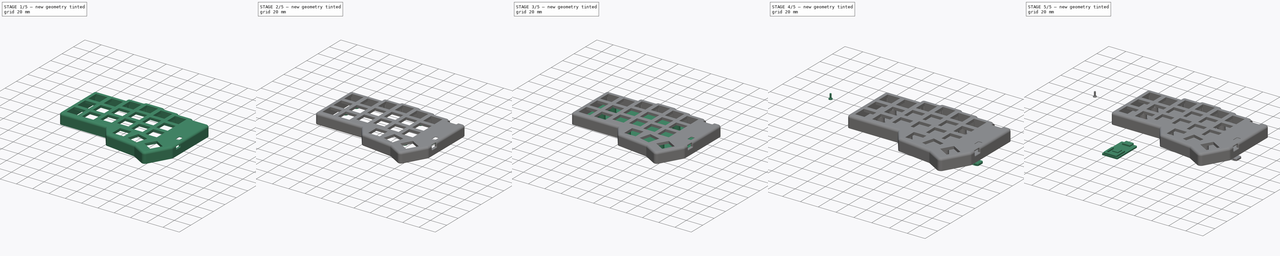
[diagram: build sequence overview — one tinted view per stage of 5, left to right]
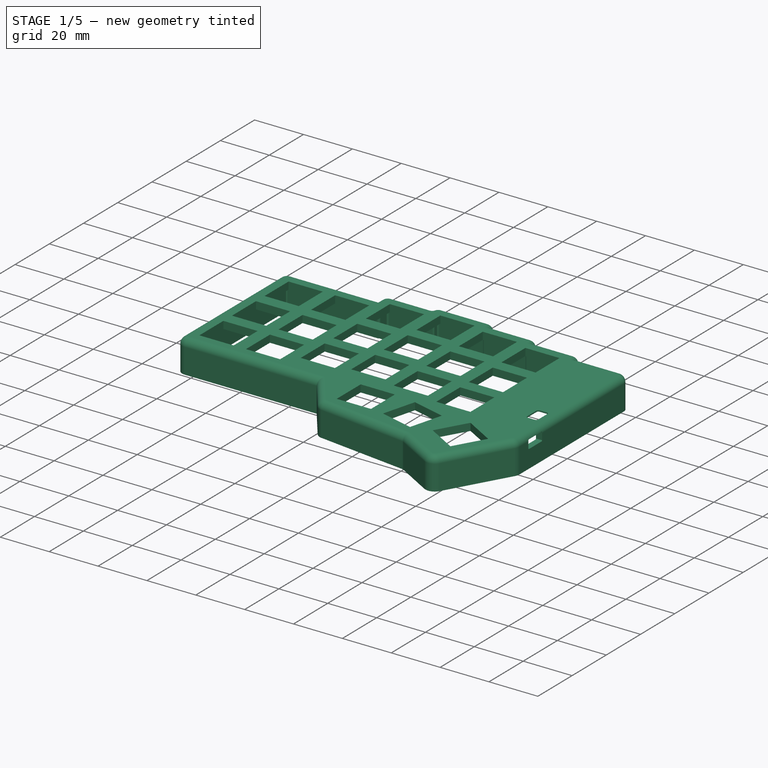
[diagram: stage 1 of 5 — iso view after this stage's code; geometry added in this stage tinted green]
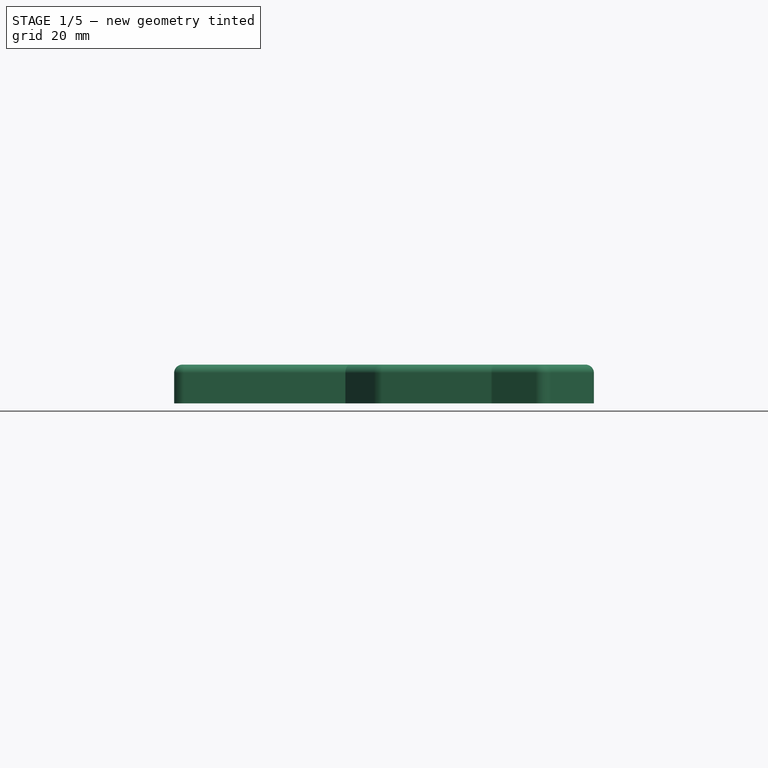
[diagram: stage 1 of 5 — front view after this stage's code; geometry added in this stage tinted green]
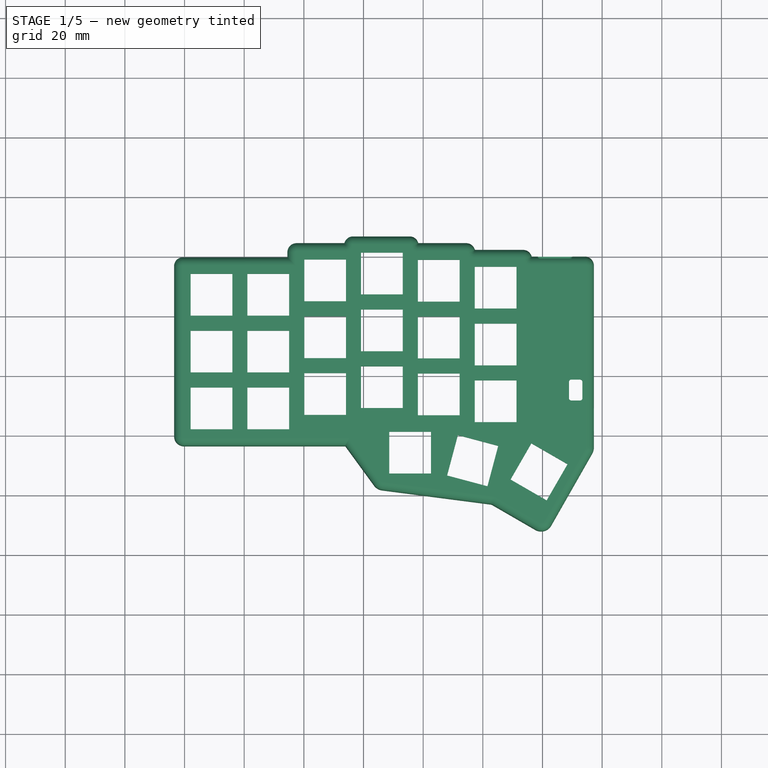
[diagram: stage 1 of 5 — top view after this stage's code; geometry added in this stage tinted green]
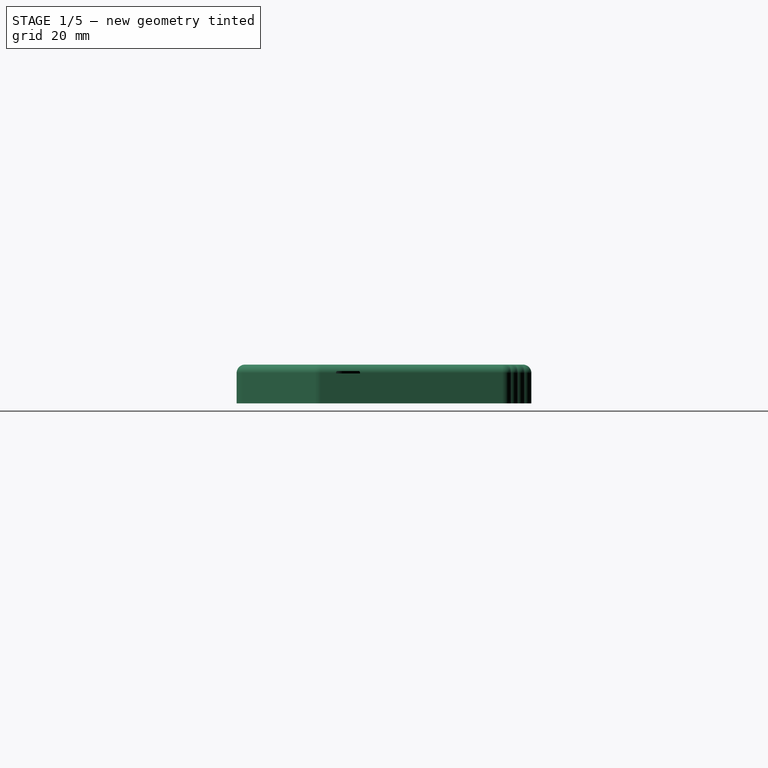
[diagram: stage 1 of 5 — right view after this stage's code; geometry added in this stage tinted green]
FCSTD DOCUMENT  (FreeCAD 1.0R39109 (Git))
Label: Case
License: All rights reserved
LicenseURL: http://en.wikipedia.org/wiki/All_rights_reserved
objects: Sketcher::SketchObject×29, PartDesign::Pocket×16, PartDesign::Pad×13, PartDesign::Fillet×9, PartDesign::Body×5, Spreadsheet::Sheet×2
note: 177 computed .brp shape members not serialized (recipe doc carries the construction recipe); baked Part::Feature solids carry a one-line shape summary decoded from their .brp

FEATURE [Sketcher::SketchObject] Sketch110
  ArcFitTolerance = 0
  FullyConstrained = false
  MakeInternals = false
  Placement = pos=(0,0,8) rot=(0,0,1;0rad)
  sketch-geometry (26):
    g0: LineSegment StartX=-0.575516 StartY=59.75 StartZ=0 EndX=34.48 EndY=59.75 EndZ=0
    g1: LineSegment StartX=34.48 StartY=59.75 StartZ=0 EndX=34.48 EndY=61.4175 EndZ=0
    g2: ArcOfCircle CenterX=37.5625 CenterY=61.4175 CenterZ=0 NormalX=0 NormalY=0 NormalZ=1 AngleXU=0 Radius=3.08246 StartAngle=1.5708 EndAngle=3.14159
    g3: LineSegment StartX=37.5625 StartY=64.5 StartZ=0 EndX=53.5746 EndY=64.5 EndZ=0
    g4: ArcOfCircle CenterX=56.4769 CenterY=63.7531 CenterZ=0 NormalX=0 NormalY=0 NormalZ=1 AngleXU=0 Radius=2.99694 StartAngle=1.5708 EndAngle=2.8897
    g5: LineSegment StartX=56.4769 StartY=66.75 StartZ=0 EndX=75.4511 EndY=66.75 EndZ=0
    g6: ArcOfCircle CenterX=75.4511 CenterY=63.7211 CenterZ=0 NormalX=0 NormalY=0 NormalZ=1 AngleXU=0 Radius=3.0289 StartAngle=0.260077 EndAngle=1.5708
    g7: LineSegment StartX=78.3781 StartY=64.5 StartZ=0 EndX=94.3924 EndY=64.5 EndZ=0
    g8: ArcOfCircle CenterX=94.3924 CenterY=61.4124 CenterZ=0 NormalX=0 NormalY=0 NormalZ=1 AngleXU=0 Radius=3.08765 StartAngle=0.274732 EndAngle=1.5708
    g9: LineSegment StartX=97.3642 StartY=62.25 StartZ=0 EndX=113.447 EndY=62.25 EndZ=0
    g10: ArcOfCircle CenterX=113.447 CenterY=59.2166 CenterZ=0 NormalX=0 NormalY=0 NormalZ=1 AngleXU=0 Radius=3.03342 StartAngle=0.261223 EndAngle=1.5708
    g11: LineSegment StartX=116.377 StartY=60 StartZ=0 EndX=134.174 EndY=60 EndZ=0
    g12: ArcOfCircle CenterX=134.174 CenterY=56.9441 CenterZ=0 NormalX=0 NormalY=0 NormalZ=1 AngleXU=0 Radius=3.05595 StartAngle=0 EndAngle=1.5708
    g13: LineSegment StartX=137.23 StartY=56.9441 StartZ=0 EndX=137.23 EndY=-3.79962 EndZ=0
    g14: ArcOfCircle CenterX=132.762 CenterY=-3.79962 CenterZ=0 NormalX=0 NormalY=0 NormalZ=1 AngleXU=0 Radius=4.46789 StartAngle=5.76566 EndAngle=6.28319
    g15: LineSegment StartX=136.645 StartY=-6.01003 StartZ=0 EndX=122.927 EndY=-30.1062 EndZ=0
    g16: ArcOfCircle CenterX=119.558 CenterY=-28.1883 CenterZ=0 NormalX=0 NormalY=0 NormalZ=1 AngleXU=0 Radius=3.87659 StartAngle=4.18792 EndAngle=5.76566
    g17: LineSegment StartX=117.617 StartY=-31.5438 StartZ=0 EndX=103.226 EndY=-23.2181 EndZ=0
    g18: ArcOfCircle CenterX=102.379 CenterY=-24.6817 CenterZ=0 NormalX=0 NormalY=0 NormalZ=1 AngleXU=0 Radius=1.69085 StartAngle=1.04632 EndAngle=1.44147
    g19: LineSegment StartX=102.597 StartY=-23.0049 StartZ=0 EndX=66.2389 EndY=-18.2764 EndZ=0
    g20: ArcOfCircle CenterX=66.7544 CenterY=-14.3127 CenterZ=0 NormalX=0 NormalY=0 NormalZ=1 AngleXU=0 Radius=3.99704 StartAngle=3.77183 EndAngle=4.58306
    g21: LineSegment StartX=63.5253 StartY=-16.6683 StartZ=0 EndX=53.9192 EndY=-3.5 EndZ=0
    g22: LineSegment StartX=53.9192 StartY=-3.5 StartZ=0 EndX=-0.150389 EndY=-3.5 EndZ=0
    g23: ArcOfCircle CenterX=-0.150389 CenterY=-0.150389 CenterZ=0 NormalX=0 NormalY=0 NormalZ=1 AngleXU=0 Radius=3.34961 StartAngle=3.14159 EndAngle=4.71239
    g24: LineSegment StartX=-3.5 StartY=-0.150389 StartZ=0 EndX=-3.5 EndY=56.8255 EndZ=0
    g25: ArcOfCircle CenterX=-0.575516 CenterY=56.8255 CenterZ=0 NormalX=0 NormalY=0 NormalZ=1 AngleXU=0 Radius=2.92448 StartAngle=1.5708 EndAngle=3.14159
  constraints (36):
    c: Horizontal(g0)
    c: Coincident(g0,g1)
    c: Vertical(g1)
    c: Coincident(g1,g2)
    c: Coincident(g2,g3)
    c: Horizontal(g3)
    c: Coincident(g3,g4)
    c: Coincident(g4,g5)
    c: Horizontal(g5)
    c: Coincident(g5,g6)
    c: Coincident(g6,g7)
    c: Horizontal(g7)
    c: Coincident(g7,g8)
    c: Coincident(g8,g9)
    c: Horizontal(g9)
    c: Coincident(g9,g10)
    c: Coincident(g10,g11)
    c: Horizontal(g11)
    c: Coincident(g11,g12)
    c: Coincident(g12,g13)
    c: Vertical(g13)
    c: Coincident(g13,g14)
    c: Coincident(g14,g15)
    c: Coincident(g15,g16)
    c: Coincident(g16,g17)
    c: Coincident(g17,g18)
    c: Coincident(g18,g19)
    c: Coincident(g19,g20)
    c: Coincident(g20,g21)
    c: Coincident(g21,g22)
    c: Horizontal(g22)
    c: Coincident(g22,g23)
    c: Coincident(g23,g24)
    c: Vertical(g24)
    c: Coincident(g24,g25)
    c: Coincident(g25,g0)
FEATURE [PartDesign::Pad] Pad028
  Direction = (0,0,1)
  Length = 13
  Length2 = 10
  Placement = pos=(0,0,8) rot=(0,0,1;0rad)
  Profile = -> Sketch110
  ReferenceAxis = -> Sketch110 [N_Axis]
  Suppressed = false
  Type = 0
FEATURE [Sketcher::SketchObject] Sketch109  label="Case.TopBorder001"
  ArcFitTolerance = 0
  AttachmentOffset = pos=(0,0,-13) rot=(0,0,1;0rad)
  AttachmentSupport = -> [Pad028]
  FullyConstrained = false
  MakeInternals = false
  MapMode = 5
  Placement = pos=(0,0,8) rot=(0,0,1;0rad)
  sketch-geometry (36):
    g0: LineSegment StartX=-0.575516 StartY=57.25 StartZ=0 EndX=36.2169 EndY=57.25 EndZ=0
    g1: LineSegment StartX=36.98 StartY=58.0131 StartZ=0 EndX=36.98 EndY=61.4175 EndZ=0
    g2: LineSegment StartX=37.5625 StartY=62 StartZ=0 EndX=55.4164 EndY=62 EndZ=0
    g3: LineSegment StartX=55.98 StartY=62.5636 StartZ=0 EndX=55.98 EndY=63.7531 EndZ=0
    g4: LineSegment StartX=56.4769 StartY=64.25 StartZ=0 EndX=75.4511 EndY=64.25 EndZ=0
    g5: LineSegment StartX=75.98 StartY=63.7211 StartZ=0 EndX=75.98 EndY=62.4917 EndZ=0
    g6: LineSegment StartX=76.4717 StartY=62 StartZ=0 EndX=94.3924 EndY=62 EndZ=0
    g7: LineSegment StartX=94.98 StartY=61.4124 StartZ=0 EndX=94.98 EndY=60.1933 EndZ=0
    g8: LineSegment StartX=95.4233 StartY=59.75 StartZ=0 EndX=113.447 EndY=59.75 EndZ=0
    g9: LineSegment StartX=113.98 StartY=59.2166 StartZ=0 EndX=113.98 EndY=57.754 EndZ=0
    g10: LineSegment StartX=114.234 StartY=57.5 StartZ=0 EndX=134.174 EndY=57.5 EndZ=0
    g11: LineSegment StartX=134.73 StartY=56.9441 StartZ=0 EndX=134.73 EndY=-3.79962 EndZ=0
    g12: LineSegment StartX=134.472 StartY=-4.7732 StartZ=0 EndX=120.755 EndY=-28.8693 EndZ=0
    g13: LineSegment StartX=118.869 StartY=-29.3799 StartZ=0 EndX=104.478 EndY=-21.0541 EndZ=0
    g14: LineSegment StartX=102.919 StartY=-20.5258 StartZ=0 EndX=66.5613 EndY=-15.7973 EndZ=0
    g15: LineSegment StartX=65.545 StartY=-15.195 StartZ=0 EndX=55.5069 EndY=-1.43443 EndZ=0
    g16: LineSegment StartX=54.6523 StartY=-1 StartZ=0 EndX=-0.150389 EndY=-1 EndZ=0
    g17: LineSegment StartX=-1 StartY=-0.150389 StartZ=0 EndX=-1 EndY=56.8255 EndZ=0
    g18: ArcOfCircle CenterX=37.5625 CenterY=61.4175 CenterZ=0 NormalX=0 NormalY=0 NormalZ=1 AngleXU=0 Radius=0.582459 StartAngle=1.5708 EndAngle=3.14159
    g19: ArcOfCircle CenterX=55.4164 CenterY=62.5636 CenterZ=0 NormalX=0 NormalY=0 NormalZ=1 AngleXU=0 Radius=0.563591 StartAngle=4.71239 EndAngle=6.28319
    g20: ArcOfCircle CenterX=56.4769 CenterY=63.7531 CenterZ=0 NormalX=0 NormalY=0 NormalZ=1 AngleXU=0 Radius=0.496936 StartAngle=1.5708 EndAngle=3.14159
    g21: ArcOfCircle CenterX=75.4511 CenterY=63.7211 CenterZ=0 NormalX=0 NormalY=0 NormalZ=1 AngleXU=0 Radius=0.528895 StartAngle=0 EndAngle=1.5708
    g22: ArcOfCircle CenterX=76.4717 CenterY=62.4917 CenterZ=0 NormalX=0 NormalY=0 NormalZ=1 AngleXU=0 Radius=0.491748 StartAngle=3.14159 EndAngle=4.71239
    g23: ArcOfCircle CenterX=94.3924 CenterY=61.4124 CenterZ=0 NormalX=0 NormalY=0 NormalZ=1 AngleXU=0 Radius=0.587645 StartAngle=0 EndAngle=1.5708
    g24: ArcOfCircle CenterX=95.4233 CenterY=60.1933 CenterZ=0 NormalX=0 NormalY=0 NormalZ=1 AngleXU=0 Radius=0.443253 StartAngle=3.14159 EndAngle=4.71239
    g25: ArcOfCircle CenterX=113.447 CenterY=59.2166 CenterZ=0 NormalX=0 NormalY=0 NormalZ=1 AngleXU=0 Radius=0.533416 StartAngle=0 EndAngle=1.5708
    g26: ArcOfCircle CenterX=134.174 CenterY=56.9441 CenterZ=0 NormalX=0 NormalY=0 NormalZ=1 AngleXU=0 Radius=0.555946 StartAngle=0 EndAngle=1.5708
    g27: ArcOfCircle CenterX=119.558 CenterY=-28.1883 CenterZ=0 NormalX=0 NormalY=0 NormalZ=1 AngleXU=0 Radius=1.37659 StartAngle=4.18792 EndAngle=5.76566
    g28: ArcOfCircle CenterX=-0.150389 CenterY=-0.150389 CenterZ=0 NormalX=0 NormalY=0 NormalZ=1 AngleXU=0 Radius=0.849611 StartAngle=3.14159 EndAngle=4.71239
    g29: ArcOfCircle CenterX=36.2169 CenterY=58.0131 CenterZ=0 NormalX=0 NormalY=0 NormalZ=1 AngleXU=0 Radius=0.763133 StartAngle=4.71239 EndAngle=6.28319
    g30: ArcOfCircle CenterX=114.234 CenterY=57.754 CenterZ=0 NormalX=0 NormalY=0 NormalZ=1 AngleXU=0 Radius=0.253983 StartAngle=3.14159 EndAngle=4.71239
    g31: ArcOfCircle CenterX=-0.575516 CenterY=56.8255 CenterZ=0 NormalX=0 NormalY=0 NormalZ=1 AngleXU=0 Radius=0.424484 StartAngle=1.5708 EndAngle=3.14159
    g32: ArcOfCircle CenterX=54.6523 CenterY=-2.05788 CenterZ=0 NormalX=0 NormalY=0 NormalZ=1 AngleXU=0 Radius=1.05788 StartAngle=0.630238 EndAngle=1.5708
    g33: ArcOfCircle CenterX=66.7544 CenterY=-14.3127 CenterZ=0 NormalX=0 NormalY=0 NormalZ=1 AngleXU=0 Radius=1.49704 StartAngle=3.77183 EndAngle=4.58306
    g34: ArcOfCircle CenterX=102.379 CenterY=-24.6817 CenterZ=0 NormalX=0 NormalY=0 NormalZ=1 AngleXU=0 Radius=4.19085 StartAngle=1.04632 EndAngle=1.44147
    g35: ArcOfCircle CenterX=132.762 CenterY=-3.79962 CenterZ=0 NormalX=0 NormalY=0 NormalZ=1 AngleXU=0 Radius=1.96789 StartAngle=5.76566 EndAngle=6.28319
  constraints (36):
    c: Coincident(g17,g28)
    c: Coincident(g16,g28)
    c: Coincident(g0,g29)
    c: Coincident(g1,g29)
    c: Coincident(g1,g18)
    c: Coincident(g2,g18)
    c: Coincident(g2,g19)
    c: Coincident(g3,g19)
    c: Coincident(g3,g20)
    c: Coincident(g4,g20)
    c: Coincident(g4,g21)
    c: Coincident(g5,g22)
    c: Coincident(g5,g21)
    c: Coincident(g6,g22)
    c: Coincident(g6,g23)
    c: Coincident(g7,g24)
    c: Coincident(g7,g23)
    c: Coincident(g8,g24)
    c: Coincident(g8,g25)
    c: Coincident(g9,g25)
    c: Coincident(g13,g27)
    c: Coincident(g12,g27)
    c: Coincident(g10,g26)
    c: Coincident(g11,g26)
    c: Tangent(g9,g30) = -1.5708
    c: Tangent(g10,g30) = -1.5708
    c: Tangent(g0,g31) = 1.5708
    c: Tangent(g17,g31) = 1.5708
    c: Tangent(g16,g32) = -1.5708
    c: Tangent(g15,g32) = -1.5708
    c: Tangent(g15,g33) = 1.5708
    c: Tangent(g14,g33) = 1.5708
    c: Tangent(g14,g34) = -1.5708
    c: Tangent(g13,g34) = -1.5708
    c: Tangent(g11,g35) = 1.5708
    c: Tangent(g12,g35) = 1.5708
FEATURE [PartDesign::Pocket] Pocket021
  BaseFeature = -> Pad028
  Direction = (0,0,-1)
  Length = 10
  Length2 = 5
  Placement = pos=(0,0,8) rot=(0,0,1;0rad)
  Profile = -> Sketch109
  ReferenceAxis = -> Sketch109 [N_Axis]
  Reversed = true
  Suppressed = false
  Type = 0
FEATURE [PartDesign::Fillet] Fillet003
  Base = -> Pocket021 [Edge90,Edge91,Edge92,Edge89,Edge88,Edge87,Edge86,Edge85,Edge84,Edge83,Edge82,Edge81,Edge80,Edge79,Edge78,Edge77,Edge76,Edge75,Edge74,Edge73,Edge72,Edge71,Edge70,Edge10,Edge4,Edge7]
  BaseFeature = -> Pocket021
  Placement = pos=(0,0,8) rot=(0,0,1;0rad)
  Radius = 2.8
  SupportTransform = false
  Suppressed = false
  UseAllEdges = false
FEATURE [Sketcher::SketchObject] Sketch111  label="Case.SwitchPlatePocket001"
  ArcFitTolerance = 0
  AttachmentSupport = -> [Fillet003]
  FullyConstrained = false
  MakeInternals = false
  MapMode = 5
  Placement = pos=(0,0,21) rot=(0,0,1;0rad)
  expr: .Placement.Base.z = Spreadsheet001.CaseTopBottomBorderHeight + Spreadsheet001.SwitchplateHeight
  sketch-geometry (115):
    g0: LineSegment StartX=68.62 StartY=1.21 StartZ=0 EndX=82.62 EndY=1.21 EndZ=0
    g1: LineSegment StartX=82.62 StartY=1.21 StartZ=0 EndX=82.62 EndY=-12.79 EndZ=0
    g2: LineSegment StartX=82.62 StartY=-12.79 StartZ=0 EndX=68.62 EndY=-12.79 EndZ=0
    g3: LineSegment StartX=68.62 StartY=-12.79 StartZ=0 EndX=68.62 EndY=1.21 EndZ=0
    g4: LineSegment StartX=91.6293 StartY=0.0893034 StartZ=0 EndX=105.156 EndY=-3.52 EndZ=0
    g5: LineSegment StartX=105.156 StartY=-3.52 StartZ=0 EndX=101.547 EndY=-17.0467 EndZ=0
    g6: LineSegment StartX=101.547 StartY=-17.0467 StartZ=0 EndX=88.02 EndY=-13.4374 EndZ=0
    g7: LineSegment StartX=88.02 StartY=-13.4374 StartZ=0 EndX=91.6293 EndY=0.0893034 EndZ=0
    g8: LineSegment StartX=116.275 StartY=-2.66 StartZ=0 EndX=128.399 EndY=-9.66 EndZ=0
    g9: LineSegment StartX=128.399 StartY=-9.66 StartZ=0 EndX=121.399 EndY=-21.7844 EndZ=0
    g10: LineSegment StartX=121.399 StartY=-21.7844 StartZ=0 EndX=109.277 EndY=-14.7856 EndZ=0
    g11: LineSegment StartX=109.277 StartY=-14.7856 StartZ=0 EndX=116.275 EndY=-2.66 EndZ=0
    g12: Circle [constr] CenterX=108.346 CenterY=-6.24282 CenterZ=0 NormalX=0 NormalY=0 NormalZ=1 AngleXU=0 Radius=1.14051
    g13: Circle [constr] CenterX=61.8361 CenterY=1.51 CenterZ=0 NormalX=0 NormalY=0 NormalZ=1 AngleXU=0 Radius=1.14411
    g14: Circle [constr] CenterX=18.6 CenterY=18.76 CenterZ=0 NormalX=0 NormalY=0 NormalZ=1 AngleXU=0 Radius=1.14013
    g15: Circle [constr] CenterX=18.6 CenterY=37.51 CenterZ=0 NormalX=0 NormalY=0 NormalZ=1 AngleXU=0 Radius=1.14152
    g16: Circle [constr] CenterX=94.6 CenterY=41.2626 CenterZ=0 NormalX=0 NormalY=0 NormalZ=1 AngleXU=0 Radius=1.14274
    g17: LineSegment StartX=2.02 StartY=54.16 StartZ=0 EndX=2.02 EndY=40.16 EndZ=0
    g18: LineSegment StartX=2.02 StartY=2.06 StartZ=0 EndX=16.02 EndY=2.06 EndZ=0
    g19: LineSegment StartX=35.07 StartY=54.16 StartZ=0 EndX=21.07 EndY=54.16 EndZ=0
    g20: LineSegment StartX=35.07 StartY=40.16 StartZ=0 EndX=21.07 EndY=40.16 EndZ=0
    g21: LineSegment StartX=35.07 StartY=16.06 StartZ=0 EndX=21.07 EndY=16.06 EndZ=0
    g22: LineSegment StartX=2.02 StartY=35.11 StartZ=0 EndX=16.02 EndY=35.11 EndZ=0
    g23: LineSegment StartX=2.02 StartY=21.11 StartZ=0 EndX=16.02 EndY=21.11 EndZ=0
    g24: LineSegment StartX=16.02 StartY=54.16 StartZ=0 EndX=16.02 EndY=40.16 EndZ=0
    g25: LineSegment StartX=21.07 StartY=2.06 StartZ=0 EndX=21.07 EndY=16.06 EndZ=0
    g26: LineSegment StartX=35.07 StartY=54.16 StartZ=0 EndX=35.07 EndY=40.16 EndZ=0
    g27: LineSegment StartX=40.12 StartY=58.97 StartZ=0 EndX=40.12 EndY=44.97 EndZ=0
    g28: LineSegment StartX=54.12 StartY=6.87 StartZ=0 EndX=54.12 EndY=20.87 EndZ=0
    g29: LineSegment StartX=59.17 StartY=61.27 StartZ=0 EndX=59.17 EndY=47.27 EndZ=0
    g30: LineSegment StartX=73.17 StartY=9.17 StartZ=0 EndX=73.17 EndY=23.17 EndZ=0
    g31: LineSegment StartX=78.22 StartY=58.87 StartZ=0 EndX=78.22 EndY=44.87 EndZ=0
    g32: LineSegment StartX=92.22 StartY=6.77 StartZ=0 EndX=92.22 EndY=20.77 EndZ=0
    g33: LineSegment StartX=97.27 StartY=56.54 StartZ=0 EndX=97.27 EndY=42.54 EndZ=0
    g34: LineSegment StartX=111.27 StartY=56.54 StartZ=0 EndX=111.27 EndY=42.54 EndZ=0
    g35: LineSegment StartX=40.12 StartY=44.97 StartZ=0 EndX=54.12 EndY=44.97 EndZ=0
    g36: LineSegment StartX=40.12 StartY=39.92 StartZ=0 EndX=54.12 EndY=39.92 EndZ=0
    g37: LineSegment StartX=40.12 StartY=6.87 StartZ=0 EndX=54.12 EndY=6.87 EndZ=0
    g38: LineSegment StartX=59.17 StartY=9.17 StartZ=0 EndX=73.17 EndY=9.17 EndZ=0
    g39: LineSegment StartX=59.17 StartY=23.17 StartZ=0 EndX=73.17 EndY=23.17 EndZ=0
    g40: LineSegment StartX=59.17 StartY=28.22 StartZ=0 EndX=73.17 EndY=28.22 EndZ=0
    g41: LineSegment StartX=59.17 StartY=42.22 StartZ=0 EndX=73.17 EndY=42.22 EndZ=0
    g42: LineSegment StartX=59.17 StartY=47.27 StartZ=0 EndX=73.17 EndY=47.27 EndZ=0
    g43: LineSegment StartX=16.02 StartY=54.16 StartZ=0 EndX=2.02 EndY=54.16 EndZ=0
    g44: LineSegment StartX=16.02 StartY=40.16 StartZ=0 EndX=2.02 EndY=40.16 EndZ=0
    g45: LineSegment StartX=21.07 StartY=21.11 StartZ=0 EndX=35.07 EndY=21.11 EndZ=0
    g46: LineSegment StartX=16.02 StartY=16.06 StartZ=0 EndX=2.02 EndY=16.06 EndZ=0
    g47: LineSegment StartX=16.02 StartY=16.06 StartZ=0 EndX=16.02 EndY=2.06 EndZ=0
    g48: LineSegment StartX=21.07 StartY=21.11 StartZ=0 EndX=21.07 EndY=35.11 EndZ=0
    g49: LineSegment StartX=21.07 StartY=40.16 StartZ=0 EndX=21.07 EndY=54.16 EndZ=0
    g50: LineSegment StartX=16.02 StartY=35.11 StartZ=0 EndX=16.02 EndY=21.11 EndZ=0
    g51: LineSegment StartX=35.07 StartY=35.11 StartZ=0 EndX=35.07 EndY=21.11 EndZ=0
    g52: LineSegment StartX=35.07 StartY=16.06 StartZ=0 EndX=35.07 EndY=2.06 EndZ=0
    g53: LineSegment StartX=54.12 StartY=44.97 StartZ=0 EndX=54.12 EndY=58.97 EndZ=0
    g54: LineSegment StartX=54.12 StartY=25.92 StartZ=0 EndX=54.12 EndY=39.92 EndZ=0
    g55: LineSegment StartX=97.27 StartY=42.54 StartZ=0 EndX=111.27 EndY=42.54 EndZ=0
    g56: LineSegment StartX=97.27 StartY=37.49 StartZ=0 EndX=111.27 EndY=37.49 EndZ=0
    g57: LineSegment StartX=97.27 StartY=23.49 StartZ=0 EndX=111.27 EndY=23.49 EndZ=0
    g58: LineSegment StartX=97.27 StartY=18.44 StartZ=0 EndX=111.27 EndY=18.44 EndZ=0
    g59: LineSegment StartX=97.27 StartY=4.44 StartZ=0 EndX=111.27 EndY=4.44 EndZ=0
    g60: LineSegment StartX=73.17 StartY=28.22 StartZ=0 EndX=73.17 EndY=42.22 EndZ=0
    g61: LineSegment StartX=78.22 StartY=44.87 StartZ=0 EndX=92.22 EndY=44.87 EndZ=0
    g62: LineSegment StartX=73.17 StartY=47.27 StartZ=0 EndX=73.17 EndY=61.27 EndZ=0
    g63: LineSegment StartX=92.22 StartY=25.82 StartZ=0 EndX=92.22 EndY=39.82 EndZ=0
    g64: LineSegment StartX=78.22 StartY=6.77 StartZ=0 EndX=92.22 EndY=6.77 EndZ=0
    g65: LineSegment StartX=78.22 StartY=20.77 StartZ=0 EndX=92.22 EndY=20.77 EndZ=0
    g66: LineSegment StartX=78.22 StartY=25.82 StartZ=0 EndX=92.22 EndY=25.82 EndZ=0
    g67: LineSegment StartX=78.22 StartY=20.77 StartZ=0 EndX=78.22 EndY=6.77 EndZ=0
    g68: LineSegment StartX=78.22 StartY=39.82 StartZ=0 EndX=92.22 EndY=39.82 EndZ=0
    g69: LineSegment StartX=59.17 StartY=42.22 StartZ=0 EndX=59.17 EndY=28.22 EndZ=0
    g70: LineSegment StartX=78.22 StartY=39.82 StartZ=0 EndX=78.22 EndY=25.82 EndZ=0
    g71: LineSegment StartX=92.22 StartY=44.87 StartZ=0 EndX=92.22 EndY=58.87 EndZ=0
    g72: LineSegment StartX=40.12 StartY=39.92 StartZ=0 EndX=40.12 EndY=25.92 EndZ=0
    g73: LineSegment StartX=40.12 StartY=20.87 StartZ=0 EndX=40.12 EndY=6.87 EndZ=0
    g74: LineSegment StartX=97.27 StartY=18.44 StartZ=0 EndX=97.27 EndY=4.44 EndZ=0
    g75: LineSegment StartX=111.27 StartY=18.44 StartZ=0 EndX=111.27 EndY=4.44 EndZ=0
    g76: LineSegment StartX=111.27 StartY=37.49 StartZ=0 EndX=111.27 EndY=23.49 EndZ=0
    g77: LineSegment StartX=97.27 StartY=37.49 StartZ=0 EndX=97.27 EndY=23.49 EndZ=0
    g78: LineSegment StartX=78.22 StartY=58.87 StartZ=0 EndX=92.22 EndY=58.87 EndZ=0
    g79: LineSegment StartX=59.17 StartY=23.17 StartZ=0 EndX=59.17 EndY=9.17 EndZ=0
    g80: LineSegment StartX=2.02 StartY=35.11 StartZ=0 EndX=2.02 EndY=21.11 EndZ=0
    g81: LineSegment StartX=2.02 StartY=16.06 StartZ=0 EndX=2.02 EndY=2.06 EndZ=0
    g82: LineSegment StartX=111.27 StartY=56.54 StartZ=0 EndX=97.27 EndY=56.54 EndZ=0
    g83: LineSegment StartX=40.12 StartY=58.97 StartZ=0 EndX=54.12 EndY=58.97 EndZ=0
    g84: LineSegment StartX=40.12 StartY=20.87 StartZ=0 EndX=54.12 EndY=20.87 EndZ=0
    g85: LineSegment StartX=21.07 StartY=2.06 StartZ=0 EndX=35.07 EndY=2.06 EndZ=0
    g86: LineSegment StartX=40.12 StartY=25.92 StartZ=0 EndX=54.12 EndY=25.92 EndZ=0
    g87: LineSegment [constr] StartX=109.277 StartY=-14.7856 StartZ=0 EndX=109.277 EndY=-18.8356 EndZ=0
    g88: LineSegment [constr] StartX=88.02 StartY=-13.4374 StartZ=0 EndX=88.02 EndY=-63.3371 EndZ=0
    g89: LineSegment [constr] StartX=101.547 StartY=-17.0467 StartZ=0 EndX=109.277 EndY=-17.0467 EndZ=0
    g90: LineSegment [constr] StartX=0.08 StartY=56.27 StartZ=0 EndX=0.08 EndY=0.01 EndZ=0
    g91: LineSegment [constr] StartX=0.08 StartY=56.27 StartZ=0 EndX=38.09 EndY=56.27 EndZ=0
    g92: LineSegment [constr] StartX=0.08 StartY=0.01 StartZ=0 EndX=55.8461 EndY=0.01 EndZ=0
    g93: LineSegment [constr] StartX=55.8461 StartY=0.01 StartZ=0 EndX=66.6118 EndY=-14.7264 EndZ=0
    g94: LineSegment [constr] StartX=66.6118 StartY=-14.7264 StartZ=0 EndX=104.029 EndY=-19.5728 EndZ=0
    g95: LineSegment [constr] StartX=104.029 StartY=-19.5728 StartZ=0 EndX=119.75 EndY=-28.6236 EndZ=0
    g96: LineSegment [constr] StartX=119.75 StartY=-28.6236 StartZ=0 EndX=133.476 EndY=-4.78248 EndZ=0
    g97: LineSegment [constr] StartX=113.11 StartY=58.5126 StartZ=0 EndX=113.11 EndY=6.94265 EndZ=0
    g98: LineSegment [constr] StartX=113.11 StartY=6.94265 StartZ=0 EndX=133.476 EndY=-4.78248 EndZ=0
    g99: LineSegment [constr] StartX=94.09 StartY=58.5126 StartZ=0 EndX=113.11 EndY=58.5126 EndZ=0
    g100: LineSegment [constr] StartX=94.09 StartY=61.0126 StartZ=0 EndX=94.09 EndY=58.5126 EndZ=0
    g101: LineSegment [constr] StartX=38.09 StartY=61.02 StartZ=0 EndX=57.08 EndY=61.02 EndZ=0
    g102: LineSegment [constr] StartX=57.08 StartY=63.26 StartZ=0 EndX=75.08 EndY=63.26 EndZ=0
    g103: LineSegment [constr] StartX=57.08 StartY=63.26 StartZ=0 EndX=57.08 EndY=61.02 EndZ=0
    g104: LineSegment [constr] StartX=75.08 StartY=61.02 StartZ=0 EndX=75.08 EndY=63.26 EndZ=0
    g105: LineSegment [constr] StartX=75.08 StartY=61.02 StartZ=0 EndX=94.09 EndY=61.0126 EndZ=0
    g106: LineSegment [constr] StartX=38.09 StartY=61.02 StartZ=0 EndX=38.09 EndY=56.27 EndZ=0
    g107: LineSegment StartX=73.17 StartY=61.27 StartZ=0 EndX=59.17 EndY=61.27 EndZ=0
    g108: LineSegment StartX=21.07 StartY=35.11 StartZ=0 EndX=35.07 EndY=35.11 EndZ=0
    g109: LineSegment [constr] StartX=114.544 StartY=22.1265 StartZ=0 EndX=114.544 EndY=57.5 EndZ=0
    g110: LineSegment [constr] StartX=115.521 StartY=21.15 StartZ=0 EndX=134.73 EndY=21.15 EndZ=0
    g111: LineSegment [constr] StartX=114.544 StartY=57.5 StartZ=0 EndX=134.174 EndY=57.5 EndZ=0
    g112: LineSegment [constr] StartX=134.73 StartY=21.15 StartZ=0 EndX=134.73 EndY=56.9444 EndZ=0
    g113: ArcOfCircle [constr] CenterX=134.174 CenterY=56.9444 CenterZ=0 NormalX=0 NormalY=0 NormalZ=1 AngleXU=0 Radius=0.555602 StartAngle=0 EndAngle=1.5708
    g114: ArcOfCircle [constr] CenterX=115.521 CenterY=22.1265 CenterZ=0 NormalX=0 NormalY=0 NormalZ=1 AngleXU=0 Radius=0.976478 StartAngle=3.14159 EndAngle=4.71239
  constraints (94):
    c: Coincident(g18,g81)
    c: Coincident(g46,g81)
    c: Coincident(g23,g80)
    c: Coincident(g22,g80)
    c: Coincident(g17,g44)
    c: Coincident(g17,g43)
    c: Coincident(g18,g47)
    c: Coincident(g46,g47)
    c: Coincident(g23,g50)
    c: Coincident(g22,g50)
    c: Coincident(g24,g44)
    c: Coincident(g24,g43)
    c: Coincident(g25,g85)
    c: Coincident(g21,g25)
    c: Coincident(g45,g48)
    c: Coincident(g48,g108)
    c: Coincident(g20,g49)
    c: Coincident(g19,g49)
    c: Coincident(g52,g85)
    c: Coincident(g21,g52)
    c: Coincident(g45,g51)
    c: Coincident(g51,g108)
    c: Coincident(g20,g26)
    c: Coincident(g19,g26)
    c: Coincident(g37,g73)
    c: Coincident(g73,g84)
    c: Coincident(g72,g86)
    c: Coincident(g36,g72)
    c: Coincident(g27,g35)
    c: Coincident(g27,g83)
    c: Coincident(g28,g37)
    c: Coincident(g28,g84)
    c: Coincident(g54,g86)
    c: Coincident(g36,g54)
    c: Coincident(g35,g53)
    c: Coincident(g53,g83)
    c: Coincident(g38,g79)
    c: Coincident(g39,g79)
    c: Coincident(g40,g69)
    c: Coincident(g41,g69)
    c: Coincident(g29,g42)
    c: Coincident(g29,g107)
    c: Coincident(g2,g3)
    c: Coincident(g0,g3)
    c: Coincident(g30,g38)
    c: Coincident(g30,g39)
    c: Coincident(g40,g60)
    c: Coincident(g41,g60)
    c: Coincident(g42,g62)
    c: Coincident(g62,g107)
    c: Coincident(g64,g67)
    c: Coincident(g65,g67)
    c: Coincident(g66,g70)
    c: Coincident(g68,g70)
    c: Coincident(g31,g61)
    c: Coincident(g31,g78)
    c: Coincident(g1,g2)
    c: Coincident(g0,g1)
    c: Coincident(g6,g7)
    c: Coincident(g4,g7)
    c: Coincident(g32,g64)
    c: Coincident(g32,g65)
    c: Coincident(g63,g66)
    c: Coincident(g63,g68)
    c: Coincident(g61,g71)
    c: Coincident(g71,g78)
    c: Coincident(g59,g74)
    c: Coincident(g58,g74)
    c: Coincident(g57,g77)
    c: Coincident(g56,g77)
    c: Coincident(g33,g55)
    c: Coincident(g33,g82)
    c: Coincident(g5,g6)
    c: Coincident(g4,g5)
    c: Coincident(g10,g11)
    c: Coincident(g59,g75)
    c: Coincident(g58,g75)
    c: Coincident(g57,g76)
    c: Coincident(g56,g76)
    c: Coincident(g34,g55)
    c: Coincident(g34,g82)
    c: Coincident(g8,g11)
    c: Coincident(g9,g10)
    c: Coincident(g8,g9)
    c: Vertical(g109)
    c: Horizontal(g110)
    c: Coincident(g111,g109)
    c: Horizontal(g111)
    c: Coincident(g112,g110)
    c: Vertical(g112)
    c: Tangent(g111,g113) = 1.5708
    c: Tangent(g112,g113) = -1.5708
    c: Tangent(g109,g114) = 1.5708
    c: Tangent(g110,g114) = -1.5708
FEATURE [Spreadsheet::Sheet] Spreadsheet001
  cells = A1='PCBInnerBorderSpacing; B1(PCBInnerBorderSpacing)=1; A2='CaseTopBorderWitdh; B2(CaseTopBorderWitdh)=2; A3='SwitchBorderSpacing; B3(SwitchBorderSpacing)=2; A4='PCBBorderRadius; B4(PCBBorderRadius)=0.632; A5='PCBSmallStep; B5(PCBSmallStep)=2.25; A6='PCBBigStep; B6(PCBBigStep)=4.75; A7='SwitchplateHeight; B7(SwitchplateHeight)=2; A8='CaseTopTopBorderHeight; B8(CaseTopTopBorderHeight)=7; A9='CaseTopBottomBorderHeight; B9(CaseTopBottomBorderHeight)=6; A10='CaseColumnDiameter; B10(CaseColumnDiameter)=5; A11='ThreadedInsertHeight; B11(ThreadedInsertHeight)=3; A12='ThreadedInsertExtDiameter; B12(ThreadedInsertExtDiameter)=3.9; A13='PCBHoleSize; B13(PCBHoleSize)=4.2; A14='USBCPocketWidth; B14(USBCPocketWidth)=13.2; A15='USBCPocketHEIGHT; B15(USBCPocketHeight)=7.4; A16='CaseBottomPartHeight; B16(CaseBottomPartHeight)==CaseBottomFloorHeight + CaseBottomBorder; A17='CaseBottomFloorHeight; B17(CaseBottomFloorHeight)=3; A18='CaseBottomBorder; B18(CaseBottomBorder)=10; A19='ShadowLineWidth; B19(ShadowLineWidth)==CaseTopBorderWitdh - ShadowLineLipWidth; A20='ShadowLineLipWidth; B20(ShadowLineLipWidth)=0.6; A21='ResetSwitchHeight; B21(ResetSwitchHeight)=2.6; A22='PowerSwitchHeight; B22(PowerSwitchHeight)==3 - 1.4
FEATURE [PartDesign::Pocket] Pocket022
  BaseFeature = -> Fillet003
  Direction = (0,0,-1)
  Length = 3
  Length2 = 5
  Placement = pos=(0,0,8) rot=(0,0,1;0rad)
  Profile = -> Sketch111
  ReferenceAxis = -> Sketch111 [N_Axis]
  Suppressed = false
  Type = 0
FEATURE [Sketcher::SketchObject] Sketch114
  ArcFitTolerance = 0
  AttachmentSupport = -> [Pocket022]
  FullyConstrained = false
  MakeInternals = false
  MapMode = 5
  Placement = pos=(137.23,0,8) rot=(0.57735,0.57735,0.57735;2.0944rad)
  sketch-geometry (10):
    g0: LineSegment StartX=1.24469 StartY=10.4386 StartZ=0 EndX=1.24469 EndY=7.69946 EndZ=0
    g1: LineSegment StartX=1.64469 StartY=10.8386 StartZ=0 EndX=8.89469 EndY=10.8386 EndZ=0
    g2: LineSegment StartX=1.64469 StartY=7.29946 StartZ=0 EndX=8.89469 EndY=7.29946 EndZ=0
    g3: LineSegment StartX=9.29469 StartY=10.4386 StartZ=0 EndX=9.29469 EndY=7.69946 EndZ=0
    g4: ArcOfCircle CenterX=1.64469 CenterY=10.4386 CenterZ=0 NormalX=0 NormalY=0 NormalZ=1 AngleXU=0 Radius=0.4 StartAngle=1.5708 EndAngle=3.14159
    g5: ArcOfCircle CenterX=1.64469 CenterY=7.69946 CenterZ=0 NormalX=0 NormalY=0 NormalZ=1 AngleXU=0 Radius=0.4 StartAngle=3.14159 EndAngle=4.71239
    g6: ArcOfCircle CenterX=8.89469 CenterY=7.69946 CenterZ=0 NormalX=0 NormalY=0 NormalZ=1 AngleXU=0 Radius=0.4 StartAngle=4.71239 EndAngle=6.28319
    g7: ArcOfCircle CenterX=8.89469 CenterY=10.4386 CenterZ=0 NormalX=0 NormalY=0 NormalZ=1 AngleXU=0 Radius=0.4 StartAngle=0 EndAngle=1.5708
    g8: LineSegment [constr] StartX=1.24469 StartY=10.4386 StartZ=0 EndX=9.29469 EndY=10.4386 EndZ=0
    g9: LineSegment [constr] StartX=8.89469 StartY=10.8386 StartZ=0 EndX=8.89469 EndY=7.29946 EndZ=0
  constraints (21):
    c: Horizontal(g1)
    c: Horizontal(g2)
    c: Vertical(g3)
    c: Tangent(g1,g4) = 1.5708
    c: Tangent(g0,g4) = -1.5708
    c: Tangent(g0,g5) = -1.5708
    c: Tangent(g2,g5) = -1.5708
    c: Tangent(g3,g6) = 1.5708
    c: Tangent(g2,g6) = -1.5708
    c: Tangent(g1,g7) = 1.5708
    c: Tangent(g3,g7) = 1.5708
    c: Radius(g7) = 0.4
    c: Radius(g4) = 0.4
    c: Radius(g5) = 0.4
    c: Radius(g6) = 0.4
    c: Coincident(g8,g0)
    c: Coincident(g8,g3)
    c: Horizontal(g8)
    c: Distance(g8) = 8.05
    c: Coincident(g9,g1)
    c: Coincident(g9,g2)
FEATURE [PartDesign::Pocket] Pocket023
  BaseFeature = -> Pocket022
  Direction = (-1,0,0)
  Length = 2.5
  Length2 = 5
  Placement = pos=(0,0,8) rot=(0,0,1;0rad)
  Profile = -> Sketch114
  ReferenceAxis = -> Sketch114 [N_Axis]
  Suppressed = false
  Type = 0
FEATURE [Sketcher::SketchObject] Sketch115
  ArcFitTolerance = 0
  AttachmentSupport = -> [Pocket023]
  ExternalGeometry = -> [Sketch109]
  FullyConstrained = false
  MakeInternals = false
  MapMode = 5
  Placement = pos=(0,0,18) rot=(1,0,0;3.14159rad)
  sketch-geometry (6):
    g0: ArcOfCircle CenterX=134.174 CenterY=-56.9441 CenterZ=0 NormalX=0 NormalY=0 NormalZ=1 AngleXU=0 Radius=0.555946 StartAngle=4.71239 EndAngle=6.28319
    g1: LineSegment [constr] StartX=134.73 StartY=-21.2447 StartZ=0 EndX=114.919 EndY=-21.2447 EndZ=0
    g2: LineSegment StartX=114.919 StartY=-21.2447 StartZ=0 EndX=114.919 EndY=-57.5 EndZ=0
    g3: LineSegment StartX=114.919 StartY=-57.5 StartZ=0 EndX=134.174 EndY=-57.5 EndZ=0
    g4: LineSegment StartX=134.73 StartY=-1.22951 StartZ=0 EndX=134.73 EndY=-56.9441 EndZ=0
    g5: ArcOfCircle CenterX=134.9 CenterY=-21.2101 CenterZ=0 NormalX=0 NormalY=0 NormalZ=1 AngleXU=0 Radius=19.9813 StartAngle=1.57933 EndAngle=3.14332
  constraints (13):
    c: Coincident(g0,g-4)
    c: Coincident(g0,g-5)
    c: PointOnObject(g1,g-4)
    c: Horizontal(g1)
    c: Coincident(g2,g1)
    c: PointOnObject(g2,g-5)
    c: Vertical(g2)
    c: Coincident(g3,g2)
    c: Coincident(g3,g0)
    c: PointOnObject(g4,g-4)
    c: Coincident(g4,g0)
    c: Coincident(g5,g4)
    c: Coincident(g5,g2)
FEATURE [PartDesign::Pocket] Pocket024
  BaseFeature = -> Pocket023
  Direction = (0,0,1)
  Length = 2.5
  Length2 = 5
  Placement = pos=(0,0,8) rot=(0,0,1;0rad)
  Profile = -> Sketch115
  ReferenceAxis = -> Sketch115 [N_Axis]
  Suppressed = false
  Type = 0
FEATURE [Sketcher::SketchObject] Sketch116
  ArcFitTolerance = 0
  AttachmentSupport = -> [Pocket024]
  ExternalGeometry = -> [Pocket024]
  FullyConstrained = false
  MakeInternals = false
  MapMode = 5
  Placement = pos=(0,60,8) rot=(0,0.707107,0.707107;3.14159rad)
  sketch-geometry (13):
    g0: LineSegment [constr] StartX=-134.73 StartY=5 StartZ=0 EndX=-133.114 EndY=5 EndZ=0
    g1: LineSegment StartX=-129.965 StartY=12.0454 StartZ=0 EndX=-119.17 EndY=12.0454 EndZ=0
    g2: ArcOfCircle CenterX=-119.17 CenterY=11.2402 CenterZ=0 NormalX=0 NormalY=0 NormalZ=1 AngleXU=0 Radius=0.805245 StartAngle=-9e-16 EndAngle=1.5708
    g3: LineSegment StartX=-118.365 StartY=11.2402 StartZ=0 EndX=-118.365 EndY=7.85065 EndZ=0
    g4: ArcOfCircle CenterX=-119.17 CenterY=7.85065 CenterZ=0 NormalX=0 NormalY=0 NormalZ=1 AngleXU=0 Radius=0.805245 StartAngle=4.71239 EndAngle=6.28319
    g5: LineSegment StartX=-119.17 StartY=7.0454 StartZ=0 EndX=-128.965 EndY=7.0454 EndZ=0
    g6: GeomPoint [constr] X=-133.114 Y=7.0454 Z=0
    g7: GeomPoint [constr] X=-118.365 Y=12.0454 Z=0
    g8: LineSegment [constr] StartX=-133.114 StartY=6.26145 StartZ=0 EndX=-118.365 EndY=6.26145 EndZ=0
    g9: LineSegment [constr] StartX=-122.72 StartY=12.0454 StartZ=0 EndX=-122.72 EndY=7.0454 EndZ=0
    g10: LineSegment [constr] StartX=-118.365 StartY=9.74283 StartZ=0 EndX=-129.965 EndY=9.74283 EndZ=0
    g11: LineSegment StartX=-129.965 StartY=8.0454 StartZ=0 EndX=-129.965 EndY=12.0454 EndZ=0
    g12: ArcOfCircle CenterX=-128.965 CenterY=8.0454 CenterZ=0 NormalX=0 NormalY=0 NormalZ=1 AngleXU=0 Radius=1 StartAngle=3.14159 EndAngle=4.71239
  constraints (27):
    c: Horizontal(g0)
    c: Tangent(g1,g2) = 1.5708
    c: Tangent(g2,g3) = 1.5708
    c: Tangent(g3,g4) = 1.5708
    c: Tangent(g4,g5) = 1.5708
    c: Horizontal(g1)
    c: Horizontal(g5)
    c: Vertical(g3)
    c: Equal(g2,g4)
    c: PointOnObject(g6,g5)
    c: PointOnObject(g7,g1)
    c: PointOnObject(g7,g3)
    c: PointOnObject(g8,g3)
    c: Horizontal(g8)
    c: PointOnObject(g9,g1)
    c: PointOnObject(g9,g5)
    c: Vertical(g9)
    c: Distance(g9) = 5
    c: PointOnObject(g10,g3)
    c: Horizontal(g10)
    c: Distance(g10) = 11.6
    c: Vertical(g11)
    c: PointOnObject(g10,g11)
    c: Coincident(g1,g11)
    c: Tangent(g5,g12) = 1.5708
    c: Tangent(g11,g12) = 1.5708
    c: Radius(g12) = 1
FEATURE [PartDesign::Pocket] Pocket025
  BaseFeature = -> Pocket024
  Direction = (0,-1,2e-16)
  Length = 5
  Length2 = 5
  Placement = pos=(0,0,8) rot=(0,0,1;0rad)
  Profile = -> Sketch116
  ReferenceAxis = -> Sketch116 [N_Axis]
  Suppressed = false
  Type = 0
FEATURE [Sketcher::SketchObject] Sketch
  ArcFitTolerance = 0
  AttachmentSupport = -> [Pocket025]
  FullyConstrained = false
  MakeInternals = false
  MapMode = 5
  Placement = pos=(0,0,21) rot=(0,0,1;0rad)
  sketch-geometry (23):
    g0: ArcOfCircle [constr] CenterX=132.868 CenterY=11.7057 CenterZ=0 NormalX=0 NormalY=0 NormalZ=1 AngleXU=0 Radius=1.50044 StartAngle=4.71239 EndAngle=6.28319
    g1: LineSegment [constr] StartX=132.868 StartY=10.2053 StartZ=0 EndX=129.369 EndY=10.2053 EndZ=0
    g2: ArcOfCircle [constr] CenterX=129.369 CenterY=11.7057 CenterZ=0 NormalX=0 NormalY=0 NormalZ=1 AngleXU=0 Radius=1.50044 StartAngle=3.14159 EndAngle=4.71239
    g3: LineSegment [constr] StartX=127.868 StartY=11.7057 StartZ=0 EndX=127.868 EndY=18.7049 EndZ=0
    g4: ArcOfCircle [constr] CenterX=129.369 CenterY=18.7049 CenterZ=0 NormalX=0 NormalY=0 NormalZ=1 AngleXU=0 Radius=1.50044 StartAngle=1.5708 EndAngle=3.14159
    g5: LineSegment [constr] StartX=129.369 StartY=20.2053 StartZ=0 EndX=132.868 EndY=20.2053 EndZ=0
    g6: ArcOfCircle [constr] CenterX=132.868 CenterY=18.7049 CenterZ=0 NormalX=0 NormalY=0 NormalZ=1 AngleXU=0 Radius=1.50044 StartAngle=-9e-16 EndAngle=1.5708
    g7: LineSegment [constr] StartX=134.368 StartY=18.7049 StartZ=0 EndX=134.368 EndY=11.7057 EndZ=0
    g8: GeomPoint [constr] X=134.368 Y=10.2053 Z=0
    g9: GeomPoint [constr] X=127.868 Y=20.2053 Z=0
    g10: LineSegment [constr] StartX=134.368 StartY=15.857 StartZ=0 EndX=133.368 EndY=15.857 EndZ=0
    g11: LineSegment [constr] StartX=127.868 StartY=15.2088 StartZ=0 EndX=128.868 EndY=15.2088 EndZ=0
    g12: LineSegment [constr] StartX=131.125 StartY=20.2053 StartZ=0 EndX=131.125 EndY=18.7053 EndZ=0
    g13: LineSegment [constr] StartX=130.851 StartY=10.2053 StartZ=0 EndX=130.851 EndY=11.7053 EndZ=0
    g14: LineSegment StartX=132.568 StartY=18.7053 StartZ=0 EndX=129.668 EndY=18.7053 EndZ=0
    g15: LineSegment StartX=132.568 StartY=11.7053 StartZ=0 EndX=129.668 EndY=11.7053 EndZ=0
    g16: LineSegment StartX=133.368 StartY=17.9053 StartZ=0 EndX=133.368 EndY=12.5053 EndZ=0
    g17: LineSegment StartX=128.868 StartY=17.9053 StartZ=0 EndX=128.868 EndY=12.5053 EndZ=0
    g18: ArcOfCircle CenterX=129.668 CenterY=17.9053 CenterZ=0 NormalX=0 NormalY=0 NormalZ=1 AngleXU=0 Radius=0.8 StartAngle=1.5708 EndAngle=3.14159
    g19: ArcOfCircle CenterX=132.568 CenterY=17.9053 CenterZ=0 NormalX=0 NormalY=0 NormalZ=1 AngleXU=0 Radius=0.8 StartAngle=-9e-16 EndAngle=1.5708
    g20: ArcOfCircle CenterX=132.568 CenterY=12.5053 CenterZ=0 NormalX=0 NormalY=0 NormalZ=1 AngleXU=0 Radius=0.8 StartAngle=4.71239 EndAngle=6.28319
    g21: ArcOfCircle CenterX=129.668 CenterY=12.5053 CenterZ=0 NormalX=0 NormalY=0 NormalZ=1 AngleXU=0 Radius=0.8 StartAngle=3.14159 EndAngle=4.71239
    g22: LineSegment [constr] StartX=130.678 StartY=18.7053 StartZ=0 EndX=130.678 EndY=11.7053 EndZ=0
  constraints (55):
    c: Tangent(g0,g1) = 1.5708
    c: Tangent(g1,g2) = 1.5708
    c: Tangent(g2,g3) = 1.5708
    c: Tangent(g3,g4) = 1.5708
    c: Tangent(g4,g5) = 1.5708
    c: Tangent(g5,g6) = 1.5708
    c: Tangent(g6,g7) = 1.5708
    c: Tangent(g7,g0) = 1.5708
    c: Horizontal(g1)
    c: Horizontal(g5)
    c: Vertical(g3)
    c: Vertical(g7)
    c: Equal(g0,g2)
    c: Equal(g2,g4)
    c: Equal(g4,g6)
    c: PointOnObject(g8,g1)
    c: PointOnObject(g8,g7)
    c: PointOnObject(g9,g3)
    c: PointOnObject(g9,g5)
    c: PointOnObject(g10,g7)
    c: Horizontal(g10)
    c: PointOnObject(g11,g3)
    c: Horizontal(g11)
    c: Distance(g11) = 1
    c: Distance(g10) = 1
    c: PointOnObject(g12,g5)
    c: Vertical(g12)
    c: PointOnObject(g13,g1)
    c: Vertical(g13)
    c: Distance(g12) = 1.5
    c: Distance(g13) = 1.5
    c: Horizontal(g14)
    c: Horizontal(g15)
    c: Vertical(g16)
    c: Vertical(g17)
    c: Tangent(g14,g18) = -1.5708
    c: Tangent(g17,g18) = -1.5708
    c: Tangent(g14,g19) = -1.5708
    c: Tangent(g16,g19) = 1.5708
    c: Tangent(g16,g20) = 1.5708
    c: Tangent(g15,g20) = 1.5708
    c: Tangent(g17,g21) = -1.5708
    c: Tangent(g15,g21) = 1.5708
    c: Radius(g19) = 0.8
    c: Radius(g21) = 0.8
    c: Radius(g20) = 0.8
    c: Radius(g18) = 0.8
    c: PointOnObject(g11,g17)
    c: PointOnObject(g10,g16)
    c: PointOnObject(g22,g14)
    c: PointOnObject(g22,g15)
    c: Vertical(g22)
    c: Distance(g22) = 7
    c: PointOnObject(g12,g14)
    c: PointOnObject(g13,g15)
FEATURE [PartDesign::Pocket] Pocket026
  BaseFeature = -> Pocket025
  Direction = (0,0,-1)
  Length = 5
  Length2 = 5
  Placement = pos=(0,0,8) rot=(0,0,1;0rad)
  Profile = -> Sketch
  ReferenceAxis = -> Sketch [N_Axis]
  Suppressed = false
  Type = 0
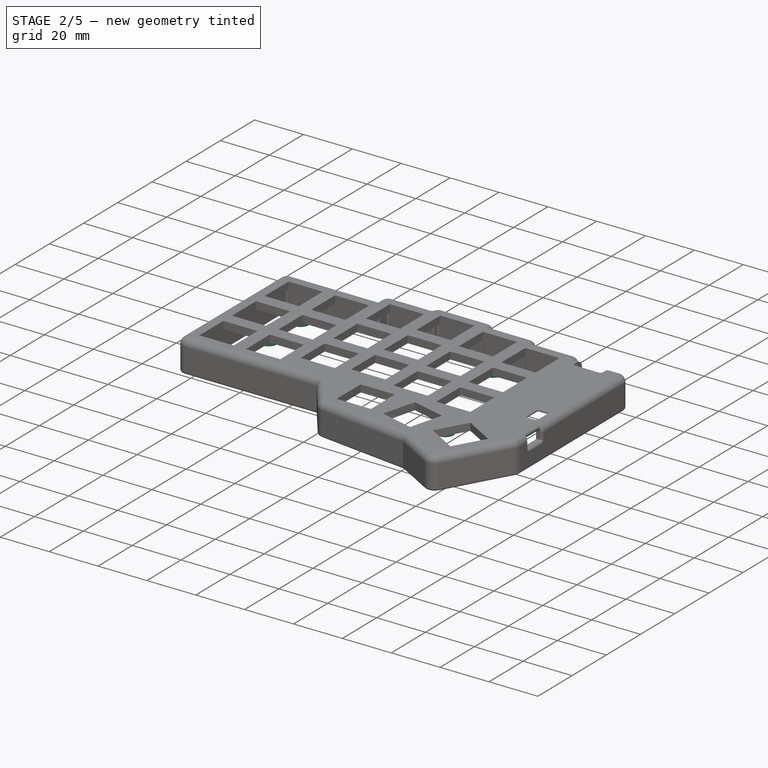
[diagram: stage 2 of 5 — iso view after this stage's code; geometry added in this stage tinted green]
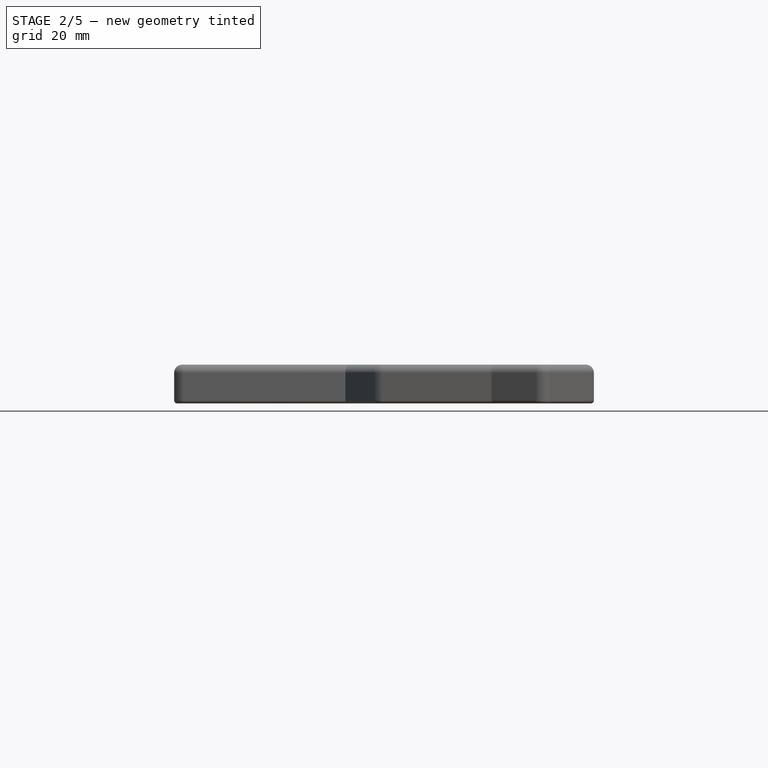
[diagram: stage 2 of 5 — front view after this stage's code; geometry added in this stage tinted green]
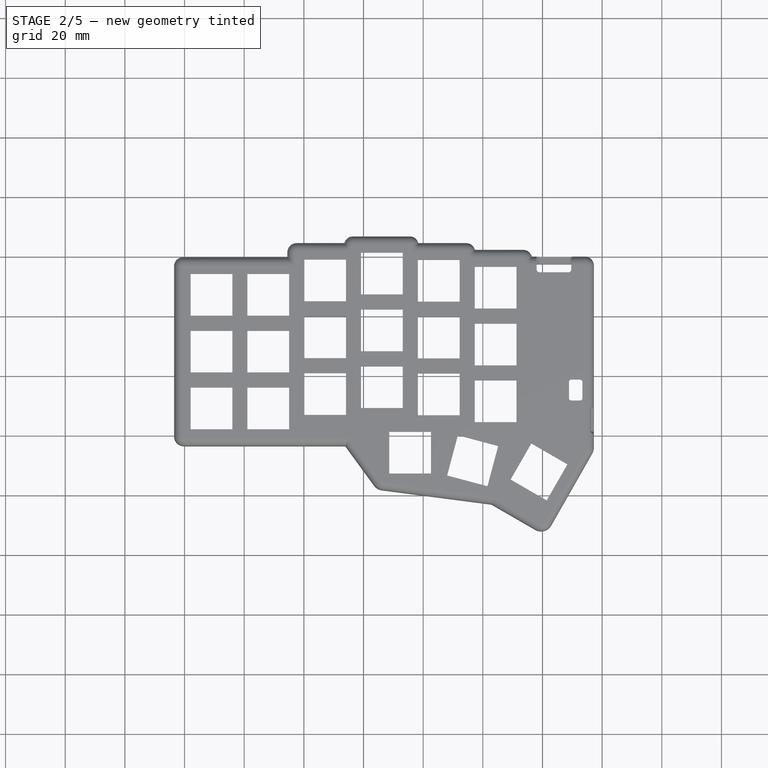
[diagram: stage 2 of 5 — top view after this stage's code; geometry added in this stage tinted green]
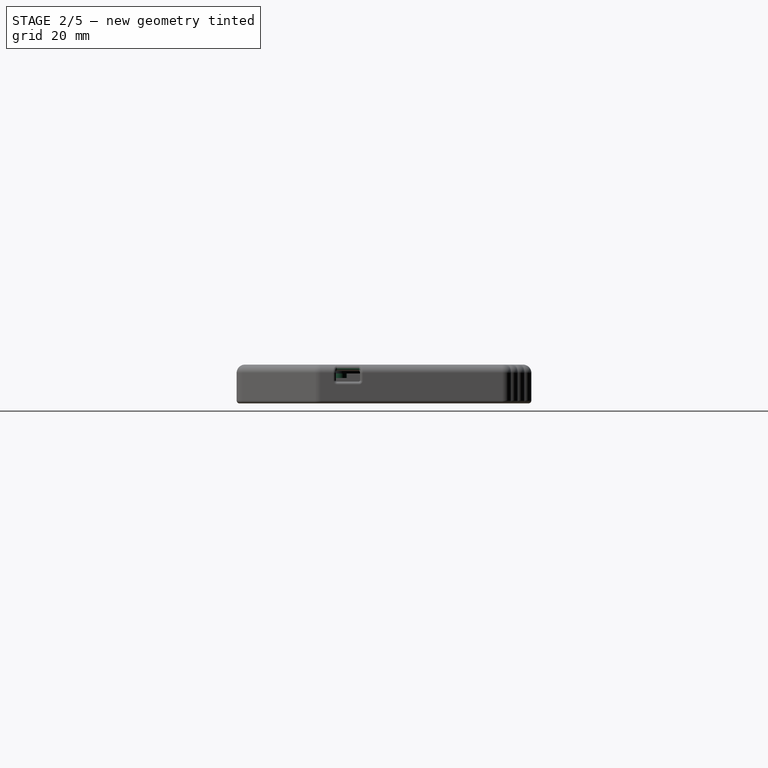
[diagram: stage 2 of 5 — right view after this stage's code; geometry added in this stage tinted green]
FEATURE [PartDesign::Fillet] Fillet
  Base = -> Pocket026 [Edge22,Edge24,Edge26,Edge28,Edge30,Edge32,Edge34,Edge33,Edge31,Edge29,Edge27,Edge25,Edge23,Edge21,Edge19,Edge17,Edge15,Edge13,Edge11,Edge3,Edge6,Edge12,Edge14,Edge16,Edge18,Edge20]
  BaseFeature = -> Pocket026
  Placement = pos=(0,0,8) rot=(0,0,1;0rad)
  Radius = 1
  SupportTransform = false
  Suppressed = false
  UseAllEdges = false
FEATURE [PartDesign::Fillet] Fillet006
  Base = -> Fillet [Edge601]
  BaseFeature = -> Fillet
  Placement = pos=(0,0,8) rot=(0,0,1;0rad)
  Radius = 1
  SupportTransform = false
  Suppressed = false
  UseAllEdges = false
FEATURE [Sketcher::SketchObject] Sketch117
  ArcFitTolerance = 0
  FullyConstrained = false
  MakeInternals = false
  MapMode = 5
  Placement = pos=(-3.5,0,8) rot=(0.57735,-0.57735,-0.57735;2.0944rad)
  sketch-geometry (5):
    g0: Circle CenterX=18.6 CenterY=-18.76 CenterZ=0 NormalX=0 NormalY=0 NormalZ=1 AngleXU=0 Radius=1.7
    g1: Circle CenterX=18.61 CenterY=-37.51 CenterZ=0 NormalX=0 NormalY=0 NormalZ=1 AngleXU=0 Radius=1.7
    g2: Circle CenterX=94.55 CenterY=-41.5 CenterZ=0 NormalX=0 NormalY=0 NormalZ=1 AngleXU=0 Radius=1.7
    g3: Circle CenterX=61.84 CenterY=-1.51 CenterZ=0 NormalX=0 NormalY=0 NormalZ=1 AngleXU=0 Radius=1.7
    g4: Circle CenterX=108.3 CenterY=6.24 CenterZ=0 NormalX=0 NormalY=0 NormalZ=1 AngleXU=0 Radius=1.7
FEATURE [PartDesign::Pocket] Pocket027
  BaseFeature = -> Fillet006
  Direction = (1,0,0)
  Length = 3.1
  Length2 = 5
  Placement = pos=(0,0,8) rot=(0,0,1;0rad)
  Profile = -> Sketch117
  ReferenceAxis = -> Sketch117 [N_Axis]
  Suppressed = false
  Type = 0
FEATURE [Sketcher::SketchObject] Sketch118
  ArcFitTolerance = 0
  AttachmentOffset = pos=(0,0,0) rot=(1,0,0;3.14159rad)
  AttachmentSupport = -> [Pad030]
  FullyConstrained = false
  MakeInternals = false
  MapMode = 5
  Placement = pos=(0,0,8) rot=(0,0,1;0rad)
  sketch-geometry (13):
    g0: Circle [constr] CenterX=61.8331 CenterY=1.49994 CenterZ=0 NormalX=0 NormalY=0 NormalZ=1 AngleXU=0 Radius=1.69083
    g1: Circle [constr] CenterX=108.311 CenterY=-6.25509 CenterZ=0 NormalX=0 NormalY=0 NormalZ=1 AngleXU=0 Radius=1.7012
    g2: Circle [constr] CenterX=18.5894 CenterY=18.7479 CenterZ=0 NormalX=0 NormalY=0 NormalZ=1 AngleXU=0 Radius=2.25
    g3: Circle [constr] CenterX=18.6105 CenterY=37.4905 CenterZ=0 NormalX=0 NormalY=0 NormalZ=1 AngleXU=0 Radius=2.25
    g4: Circle [constr] CenterX=61.8331 CenterY=1.49994 CenterZ=0 NormalX=0 NormalY=0 NormalZ=1 AngleXU=0 Radius=2.25
    g5: Circle [constr] CenterX=108.311 CenterY=-6.25509 CenterZ=0 NormalX=0 NormalY=0 NormalZ=1 AngleXU=0 Radius=2.25
    g6: Circle [constr] CenterX=94.5439 CenterY=41.487 CenterZ=0 NormalX=0 NormalY=0 NormalZ=1 AngleXU=0 Radius=2.25
    g7: Circle [constr] CenterX=94.5439 CenterY=41.487 CenterZ=0 NormalX=0 NormalY=0 NormalZ=1 AngleXU=0 Radius=3
    g8: Circle CenterX=18.6105 CenterY=37.4905 CenterZ=0 NormalX=0 NormalY=0 NormalZ=1 AngleXU=0 Radius=3
    g9: Circle CenterX=18.5894 CenterY=18.7479 CenterZ=0 NormalX=0 NormalY=0 NormalZ=1 AngleXU=0 Radius=3
    g10: Circle CenterX=61.8331 CenterY=1.49994 CenterZ=0 NormalX=0 NormalY=0 NormalZ=1 AngleXU=0 Radius=3
    g11: Circle CenterX=108.311 CenterY=-6.25509 CenterZ=0 NormalX=0 NormalY=0 NormalZ=1 AngleXU=0 Radius=3
    g12: Circle CenterX=94.5439 CenterY=41.487 CenterZ=0 NormalX=0 NormalY=0 NormalZ=1 AngleXU=0 Radius=3
  constraints (19):
    c: Radius(g2) = 2.25
    c: Radius(g3) = 2.25
    c: Coincident(g4,g0)
    c: Coincident(g5,g1)
    c: Radius(g6) = 2.25
    c: Radius(g4) = 2.25
    c: Radius(g5) = 2.25
    c: Coincident(g7,g6)
    c: Radius(g7) = 3
    c: Coincident(g8,g3)
    c: Radius(g8) = 3
    c: Coincident(g9,g2)
    c: Radius(g9) = 3
    c: Coincident(g10,g0)
    c: Radius(g10) = 3
    c: Coincident(g11,g1)
    c: Radius(g11) = 3
    c: Coincident(g12,g6)
    c: Radius(g12) = 3
FEATURE [PartDesign::Pad] Pad032
  BaseFeature = -> Pocket027
  Direction = (0,0,-1)
  Length = 1.5
  Length2 = 10
  Placement = pos=(0,0,8) rot=(0,0,1;0rad)
  Profile = -> Sketch079
  ReferenceAxis = -> Sketch079 [N_Axis]
  Suppressed = false
  Type = 0
FEATURE [Sketcher::SketchObject] Sketch126
  ArcFitTolerance = 0
  AttachmentSupport = -> [Pad032]
  ExternalGeometry = -> [Pad032]
  FullyConstrained = true
  MakeInternals = false
  MapMode = 5
  Placement = pos=(0,0,16.5) rot=(1,0,0;3.14159rad)
  sketch-geometry (5):
    g0: Circle CenterX=94.55 CenterY=-41.5 CenterZ=0 NormalX=0 NormalY=0 NormalZ=1 AngleXU=0 Radius=1.7
    g1: Circle CenterX=18.61 CenterY=-37.51 CenterZ=0 NormalX=0 NormalY=0 NormalZ=1 AngleXU=0 Radius=1.7
    g2: Circle CenterX=18.6 CenterY=-18.76 CenterZ=0 NormalX=0 NormalY=0 NormalZ=1 AngleXU=0 Radius=1.7
    g3: Circle CenterX=61.84 CenterY=-1.51 CenterZ=0 NormalX=0 NormalY=0 NormalZ=1 AngleXU=0 Radius=1.7
    g4: Circle CenterX=108.3 CenterY=6.24 CenterZ=0 NormalX=0 NormalY=0 NormalZ=1 AngleXU=0 Radius=1.7
  constraints (10):
    c: Coincident(g0,g-7)
    c: Equal(g0,g-7)
    c: Coincident(g1,g-6)
    c: Equal(g1,g-6)
    c: Coincident(g2,g-5)
    c: Equal(g2,g-5)
    c: Coincident(g3,g-3)
    c: Equal(g3,g-3)
    c: Coincident(g4,g-4)
    c: Equal(g4,g-4)
FEATURE [PartDesign::Pocket] Pocket031
  BaseFeature = -> Pad032
  Direction = (0,0,1)
  Length = 3
  Length2 = 5
  Placement = pos=(0,0,8) rot=(0,0,1;0rad)
  Profile = -> Sketch126
  ReferenceAxis = -> Sketch126 [N_Axis]
  Suppressed = false
  Type = 0
FEATURE [PartDesign::Body] Body007  label="Bottom"
  AllowCompound = false
  Group = -> [Sketch058,Sketch108,Pad,Pocket,Sketch118,Sketch119,Pad030,Pocket028,Sketch120,Pad031,Sketch121,Pocket029,Fillet009,Sketch125,Pocket030,Fillet013,Fillet015]
  Origin = -> Origin007
  Placement = pos=(0,0,-3) rot=(0,0,1;0rad)
  Tip = -> Fillet015
FEATURE [Sketcher::SketchObject] Sketch141
  ArcFitTolerance = 0
  FullyConstrained = false
  MakeInternals = false
  MapMode = 5
  Placement = pos=(0,0,21) rot=(0,0,1;0rad)
  sketch-geometry (8):
    g0: LineSegment StartX=118.05 StartY=60 StartZ=0 EndX=118.05 EndY=55.6867 EndZ=0
    g1: LineSegment StartX=129.65 StartY=60 StartZ=0 EndX=118.05 EndY=60 EndZ=0
    g2: LineSegment [constr] StartX=123.654 StartY=60 StartZ=0 EndX=123.654 EndY=55 EndZ=0
    g3: ArcOfCircle CenterX=119.05 CenterY=55.6867 CenterZ=0 NormalX=0 NormalY=0 NormalZ=1 AngleXU=0 Radius=1 StartAngle=3.14159 EndAngle=4.71239
    g4: LineSegment [constr] StartX=118.05 StartY=57.129 StartZ=0 EndX=129.65 EndY=57.129 EndZ=0
    g5: LineSegment StartX=119.05 StartY=54.6867 StartZ=0 EndX=128.65 EndY=54.6867 EndZ=0
    g6: LineSegment StartX=129.65 StartY=55.6867 StartZ=0 EndX=129.65 EndY=60 EndZ=0
    g7: ArcOfCircle CenterX=128.65 CenterY=55.6867 CenterZ=0 NormalX=0 NormalY=0 NormalZ=1 AngleXU=0 Radius=1 StartAngle=4.71239 EndAngle=6.28319
  constraints (18):
    c: Vertical(g0)
    c: Coincident(g1,g0)
    c: PointOnObject(g2,g1)
    c: Vertical(g2)
    c: Distance(g2) = 5
    c: Tangent(g0,g3) = -1.5708
    c: Radius(g3) = 1
    c: PointOnObject(g4,g0)
    c: Horizontal(g4)
    c: Distance(g4) = 11.6
    c: Coincident(g5,g3)
    c: Horizontal(g5)
    c: Vertical(g6)
    c: Coincident(g1,g6)
    c: Tangent(g6,g7) = -1.5708
    c: Tangent(g5,g7) = -1.5708
    c: Radius(g7) = 1
    c: PointOnObject(g4,g6)
FEATURE [PartDesign::Pocket] Pocket035
  BaseFeature = -> Pocket031
  Direction = (0,0,-1)
  Length = 5
  Length2 = 5
  Placement = pos=(0,0,8) rot=(0,0,1;0rad)
  Profile = -> Sketch141
  ReferenceAxis = -> Sketch141 [N_Axis]
  Suppressed = false
  Type = 0
FEATURE [Sketcher::SketchObject] Sketch142
  ArcFitTolerance = 0
  AttachmentSupport = -> [Pocket035]
  ExternalGeometry = -> [Sketch126]
  FullyConstrained = false
  MakeInternals = false
  MapMode = 5
  Placement = pos=(0,0,16.5) rot=(1,0,0;3.14159rad)
  sketch-geometry (6):
    g0: Circle CenterX=94.55 CenterY=-41.5 CenterZ=0 NormalX=0 NormalY=0 NormalZ=1 AngleXU=0 Radius=2
    g1: Circle CenterX=18.6 CenterY=-18.76 CenterZ=0 NormalX=0 NormalY=0 NormalZ=1 AngleXU=0 Radius=2
    g2: Circle CenterX=18.61 CenterY=-37.51 CenterZ=0 NormalX=0 NormalY=0 NormalZ=1 AngleXU=0 Radius=2
    g3: Circle CenterX=61.84 CenterY=-1.51 CenterZ=0 NormalX=0 NormalY=0 NormalZ=1 AngleXU=0 Radius=2
    g4: Circle CenterX=108.3 CenterY=6.24 CenterZ=0 NormalX=0 NormalY=0 NormalZ=1 AngleXU=0 Radius=1.7
    g5: Circle CenterX=108.3 CenterY=6.24 CenterZ=0 NormalX=0 NormalY=0 NormalZ=1 AngleXU=0 Radius=2
  constraints (9):
    c: Radius(g0) = 2
    c: Coincident(g1,g-4)
    c: Radius(g1) = 2
    c: Coincident(g2,g-3)
    c: Radius(g2) = 2
    c: Coincident(g3,g-5)
    c: Radius(g3) = 2
    c: Coincident(g5,g4)
    c: Radius(g5) = 2
FEATURE [PartDesign::Pocket] Pocket036
  BaseFeature = -> Pocket035
  Direction = (0,0,1)
  Length = 1
  Length2 = 5
  Placement = pos=(0,0,8) rot=(0,0,1;0rad)
  Profile = -> Sketch142
  ReferenceAxis = -> Sketch142 [N_Axis]
  Suppressed = false
  Type = 0
FEATURE [PartDesign::Body] Body008  label="Top"
  AllowCompound = false
  Group = -> [Sketch109,Sketch110,Pad028,Pocket021,Fillet003,Sketch111,Pocket022,Sketch114,Pocket023,Sketch115,Pocket024,Sketch116,Pocket025,Sketch,Pocket026,Fillet,Fillet006,Sketch079,Sketch117,Pocket027,Pad032,Sketch126,Pocket031,Sketch141,Pocket035,Sketch142,Pocket036]
  Origin = -> Origin008
  Tip = -> Pocket036
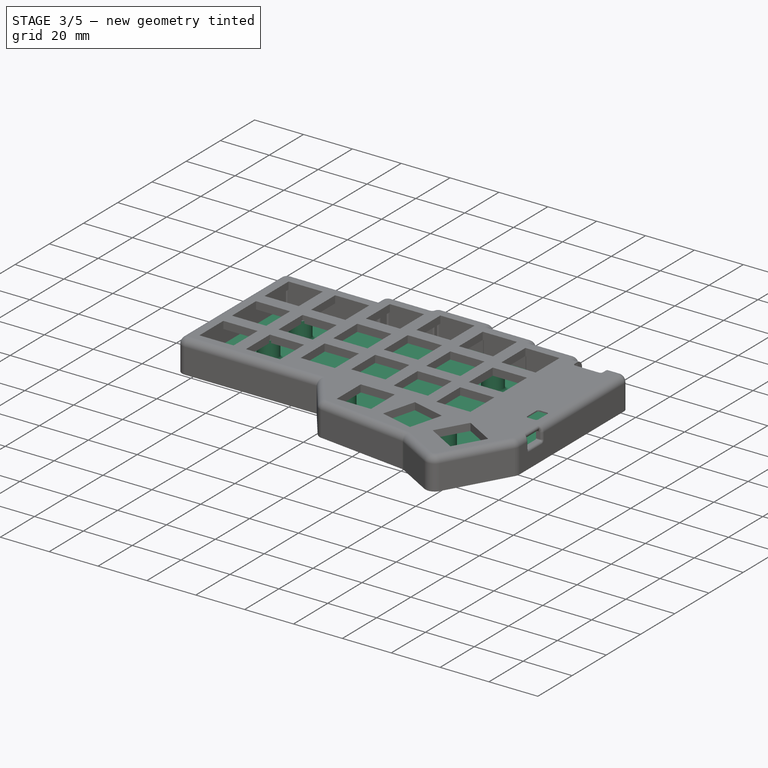
[diagram: stage 3 of 5 — iso view after this stage's code; geometry added in this stage tinted green]
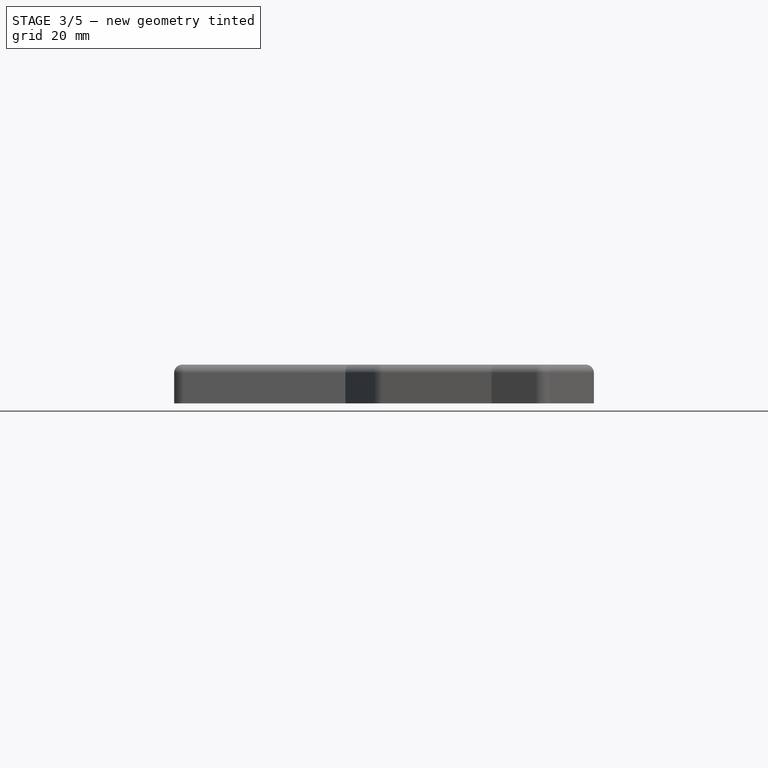
[diagram: stage 3 of 5 — front view after this stage's code; geometry added in this stage tinted green]
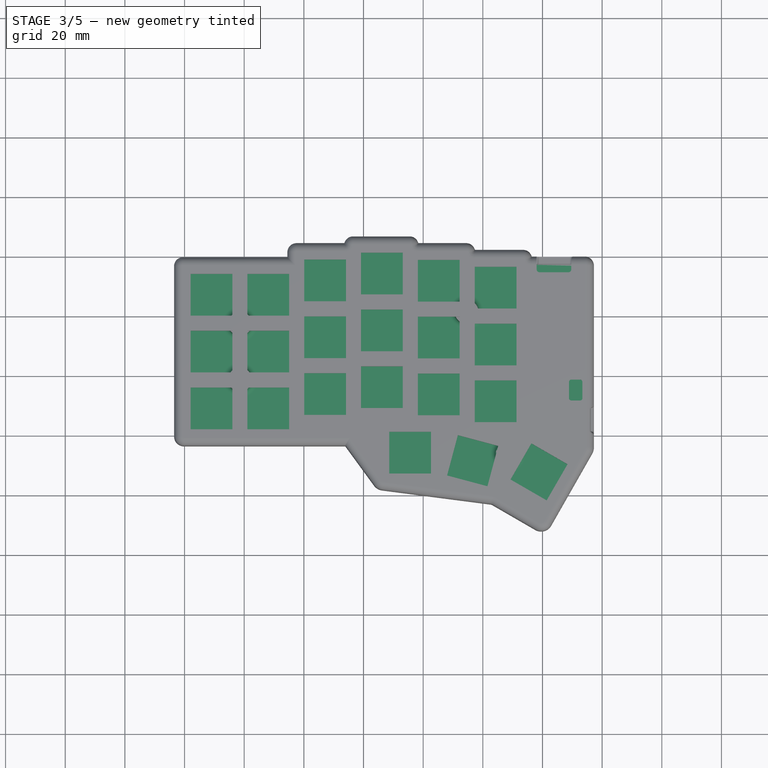
[diagram: stage 3 of 5 — top view after this stage's code; geometry added in this stage tinted green]
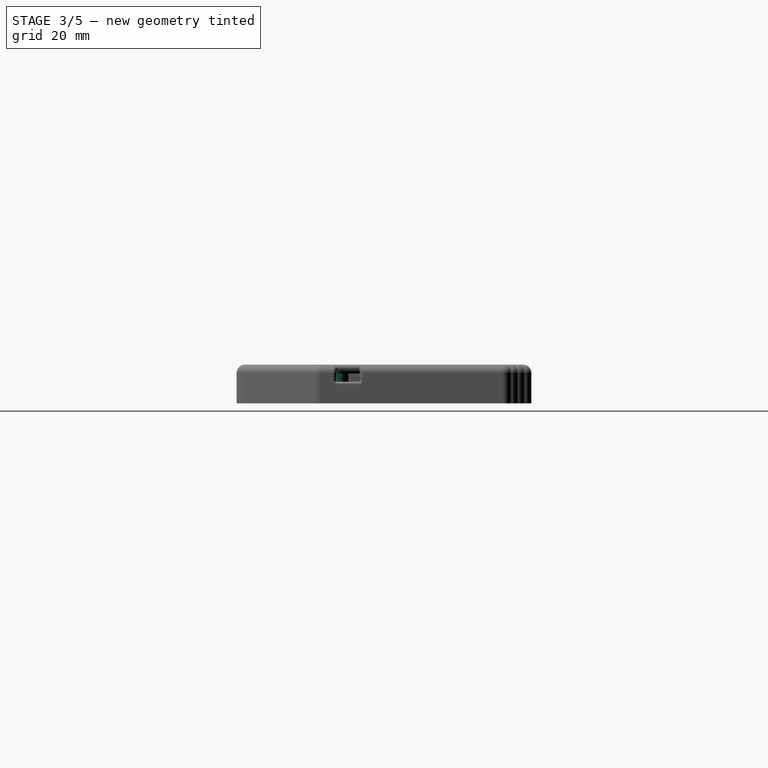
[diagram: stage 3 of 5 — right view after this stage's code; geometry added in this stage tinted green]
FEATURE [Spreadsheet::Sheet] Spreadsheet
  cells = A1='PCBInnerBorderSpacing; B1(PCBInnerBorderSpacing)=1; A2='CaseTopBorderWitdh; B2(CaseTopBorderWitdh)=2; A3='SwitchBorderSpacing; B3(SwitchBorderSpacing)=2; A4='PCBBorderRadius; B4(PCBBorderRadius)=0.632; A5='PCBSmallStep; B5(PCBSmallStep)=2.25; A6='PCBBigStep; B6(PCBBigStep)=4.75; A7='SwitchplateHeight; B7(SwitchplateHeight)=2; A8='CaseTopTopBorderHeight; B8(CaseTopTopBorderHeight)=7; A9='CaseTopBottomBorderHeight; B9(CaseTopBottomBorderHeight)=6; A10='CaseColumnDiameter; B10(CaseColumnDiameter)=5; A11='ThreadedInsertHeight; B11(ThreadedInsertHeight)=3; A12='ThreadedInsertExtDiameter; B12(ThreadedInsertExtDiameter)=3.9; A13='PCBHoleSize; B13(PCBHoleSize)=4.2; A14='USBCPocketWidth; B14(USBCPocketWidth)=13.2; A15='USBCPocketHEIGHT; B15(USBCPocketHeight)=7.4; A16='CaseBottomPartHeight; B16(CaseBottomPartHeight)==CaseBottomFloorHeight + CaseBottomBorder; A17='CaseBottomFloorHeight; B17(CaseBottomFloorHeight)=3; A18='CaseBottomBorder; B18(CaseBottomBorder)=10; A19='ShadowLineWidth; B19(ShadowLineWidth)==CaseTopBorderWitdh - ShadowLineLipWidth; A20='ShadowLineLipWidth; B20(ShadowLineLipWidth)=0.6; A21='ResetSwitchHeight; B21(ResetSwitchHeight)=2.6; A22='PowerSwitchHeight; B22(PowerSwitchHeight)==3 - 1.4
FEATURE [Sketcher::SketchObject] Sketch108
  ArcFitTolerance = 0
  FullyConstrained = false
  MakeInternals = false
  Placement = pos=(0,0,8) rot=(0,0,1;0rad)
  sketch-geometry (26):
    g0: LineSegment StartX=-0.575516 StartY=59.75 StartZ=0 EndX=34.48 EndY=59.75 EndZ=0
    g1: LineSegment StartX=34.48 StartY=59.75 StartZ=0 EndX=34.48 EndY=61.4175 EndZ=0
    g2: ArcOfCircle CenterX=37.5625 CenterY=61.4175 CenterZ=0 NormalX=0 NormalY=0 NormalZ=1 AngleXU=0 Radius=3.08246 StartAngle=1.5708 EndAngle=3.14159
    g3: LineSegment StartX=37.5625 StartY=64.5 StartZ=0 EndX=53.5746 EndY=64.5 EndZ=0
    g4: ArcOfCircle CenterX=56.4769 CenterY=63.7531 CenterZ=0 NormalX=0 NormalY=0 NormalZ=1 AngleXU=0 Radius=2.99694 StartAngle=1.5708 EndAngle=2.8897
    g5: LineSegment StartX=56.4769 StartY=66.75 StartZ=0 EndX=75.4511 EndY=66.75 EndZ=0
    g6: ArcOfCircle CenterX=75.4511 CenterY=63.7211 CenterZ=0 NormalX=0 NormalY=0 NormalZ=1 AngleXU=0 Radius=3.0289 StartAngle=0.260077 EndAngle=1.5708
    g7: LineSegment StartX=78.3781 StartY=64.5 StartZ=0 EndX=94.3924 EndY=64.5 EndZ=0
    g8: ArcOfCircle CenterX=94.3924 CenterY=61.4124 CenterZ=0 NormalX=0 NormalY=0 NormalZ=1 AngleXU=0 Radius=3.08765 StartAngle=0.274732 EndAngle=1.5708
    g9: LineSegment StartX=97.3642 StartY=62.25 StartZ=0 EndX=113.447 EndY=62.25 EndZ=0
    g10: ArcOfCircle CenterX=113.447 CenterY=59.2166 CenterZ=0 NormalX=0 NormalY=0 NormalZ=1 AngleXU=0 Radius=3.03342 StartAngle=0.261223 EndAngle=1.5708
    g11: LineSegment StartX=116.377 StartY=60 StartZ=0 EndX=134.174 EndY=60 EndZ=0
    g12: ArcOfCircle CenterX=134.174 CenterY=56.9441 CenterZ=0 NormalX=0 NormalY=0 NormalZ=1 AngleXU=0 Radius=3.05595 StartAngle=0 EndAngle=1.5708
    g13: LineSegment StartX=137.23 StartY=56.9441 StartZ=0 EndX=137.23 EndY=-3.79962 EndZ=0
    g14: ArcOfCircle CenterX=132.762 CenterY=-3.79962 CenterZ=0 NormalX=0 NormalY=0 NormalZ=1 AngleXU=0 Radius=4.46789 StartAngle=5.76566 EndAngle=6.28319
    g15: LineSegment StartX=136.645 StartY=-6.01003 StartZ=0 EndX=122.927 EndY=-30.1062 EndZ=0
    g16: ArcOfCircle CenterX=119.558 CenterY=-28.1883 CenterZ=0 NormalX=0 NormalY=0 NormalZ=1 AngleXU=0 Radius=3.87659 StartAngle=4.18792 EndAngle=5.76566
    g17: LineSegment StartX=117.617 StartY=-31.5438 StartZ=0 EndX=103.226 EndY=-23.2181 EndZ=0
    g18: ArcOfCircle CenterX=102.379 CenterY=-24.6817 CenterZ=0 NormalX=0 NormalY=0 NormalZ=1 AngleXU=0 Radius=1.69085 StartAngle=1.04632 EndAngle=1.44147
    g19: LineSegment StartX=102.597 StartY=-23.0049 StartZ=0 EndX=66.2389 EndY=-18.2764 EndZ=0
    g20: ArcOfCircle CenterX=66.7544 CenterY=-14.3127 CenterZ=0 NormalX=0 NormalY=0 NormalZ=1 AngleXU=0 Radius=3.99704 StartAngle=3.77183 EndAngle=4.58306
    g21: LineSegment StartX=63.5253 StartY=-16.6683 StartZ=0 EndX=53.9192 EndY=-3.5 EndZ=0
    g22: LineSegment StartX=53.9192 StartY=-3.5 StartZ=0 EndX=-0.150389 EndY=-3.5 EndZ=0
    g23: ArcOfCircle CenterX=-0.150389 CenterY=-0.150389 CenterZ=0 NormalX=0 NormalY=0 NormalZ=1 AngleXU=0 Radius=3.34961 StartAngle=3.14159 EndAngle=4.71239
    g24: LineSegment StartX=-3.5 StartY=-0.150389 StartZ=0 EndX=-3.5 EndY=56.8255 EndZ=0
    g25: ArcOfCircle CenterX=-0.575516 CenterY=56.8255 CenterZ=0 NormalX=0 NormalY=0 NormalZ=1 AngleXU=0 Radius=2.92448 StartAngle=1.5708 EndAngle=3.14159
  constraints (36):
    c: Horizontal(g0)
    c: Coincident(g0,g1)
    c: Vertical(g1)
    c: Coincident(g1,g2)
    c: Coincident(g2,g3)
    c: Horizontal(g3)
    c: Coincident(g3,g4)
    c: Coincident(g4,g5)
    c: Horizontal(g5)
    c: Coincident(g5,g6)
    c: Coincident(g6,g7)
    c: Horizontal(g7)
    c: Coincident(g7,g8)
    c: Coincident(g8,g9)
    c: Horizontal(g9)
    c: Coincident(g9,g10)
    c: Coincident(g10,g11)
    c: Horizontal(g11)
    c: Coincident(g11,g12)
    c: Coincident(g12,g13)
    c: Vertical(g13)
    c: Coincident(g13,g14)
    c: Coincident(g14,g15)
    c: Coincident(g15,g16)
    c: Coincident(g16,g17)
    c: Coincident(g17,g18)
    c: Coincident(g18,g19)
    c: Coincident(g19,g20)
    c: Coincident(g20,g21)
    c: Coincident(g21,g22)
    c: Horizontal(g22)
    c: Coincident(g22,g23)
    c: Coincident(g23,g24)
    c: Vertical(g24)
    c: Coincident(g24,g25)
    c: Coincident(g25,g0)
FEATURE [PartDesign::Pad] Pad
  Direction = (0,0,1)
  Length = 4
  Length2 = 10
  Placement = pos=(0,0,8) rot=(0,0,1;0rad)
  Profile = -> Sketch108
  ReferenceAxis = -> Sketch108 [N_Axis]
  Suppressed = false
  Type = 0
FEATURE [Sketcher::SketchObject] Sketch058  label="Case.TopBorder"
  ArcFitTolerance = 0
  AttachmentSupport = -> [Pad]
  FullyConstrained = false
  MakeInternals = false
  MapMode = 5
  Placement = pos=(0,0,12) rot=(0,0,1;0rad)
  sketch-geometry (36):
    g0: LineSegment StartX=-0.575516 StartY=57.25 StartZ=0 EndX=36.2169 EndY=57.25 EndZ=0
    g1: LineSegment StartX=36.98 StartY=58.0131 StartZ=0 EndX=36.98 EndY=61.4175 EndZ=0
    g2: LineSegment StartX=37.5625 StartY=62 StartZ=0 EndX=55.4164 EndY=62 EndZ=0
    g3: LineSegment StartX=55.98 StartY=62.5636 StartZ=0 EndX=55.98 EndY=63.7531 EndZ=0
    g4: LineSegment StartX=56.4769 StartY=64.25 StartZ=0 EndX=75.4511 EndY=64.25 EndZ=0
    g5: LineSegment StartX=75.98 StartY=63.7211 StartZ=0 EndX=75.98 EndY=62.4917 EndZ=0
    g6: LineSegment StartX=76.4717 StartY=62 StartZ=0 EndX=94.3924 EndY=62 EndZ=0
    g7: LineSegment StartX=94.98 StartY=61.4124 StartZ=0 EndX=94.98 EndY=60.1933 EndZ=0
    g8: LineSegment StartX=95.4233 StartY=59.75 StartZ=0 EndX=113.447 EndY=59.75 EndZ=0
    g9: LineSegment StartX=113.98 StartY=59.2166 StartZ=0 EndX=113.98 EndY=57.754 EndZ=0
    g10: LineSegment StartX=114.234 StartY=57.5 StartZ=0 EndX=134.174 EndY=57.5 EndZ=0
    g11: LineSegment StartX=134.73 StartY=56.9441 StartZ=0 EndX=134.73 EndY=-3.79962 EndZ=0
    g12: LineSegment StartX=134.472 StartY=-4.7732 StartZ=0 EndX=120.755 EndY=-28.8693 EndZ=0
    g13: LineSegment StartX=118.869 StartY=-29.3799 StartZ=0 EndX=104.478 EndY=-21.0541 EndZ=0
    g14: LineSegment StartX=102.919 StartY=-20.5258 StartZ=0 EndX=66.5613 EndY=-15.7973 EndZ=0
    g15: LineSegment StartX=65.545 StartY=-15.195 StartZ=0 EndX=55.5069 EndY=-1.43443 EndZ=0
    g16: LineSegment StartX=54.6523 StartY=-1 StartZ=0 EndX=-0.150389 EndY=-1 EndZ=0
    g17: LineSegment StartX=-1 StartY=-0.150389 StartZ=0 EndX=-1 EndY=56.8255 EndZ=0
    g18: ArcOfCircle CenterX=37.5625 CenterY=61.4175 CenterZ=0 NormalX=0 NormalY=0 NormalZ=1 AngleXU=0 Radius=0.582459 StartAngle=1.5708 EndAngle=3.14159
    g19: ArcOfCircle CenterX=55.4164 CenterY=62.5636 CenterZ=0 NormalX=0 NormalY=0 NormalZ=1 AngleXU=0 Radius=0.563591 StartAngle=4.71239 EndAngle=6.28319
    g20: ArcOfCircle CenterX=56.4769 CenterY=63.7531 CenterZ=0 NormalX=0 NormalY=0 NormalZ=1 AngleXU=0 Radius=0.496936 StartAngle=1.5708 EndAngle=3.14159
    g21: ArcOfCircle CenterX=75.4511 CenterY=63.7211 CenterZ=0 NormalX=0 NormalY=0 NormalZ=1 AngleXU=0 Radius=0.528895 StartAngle=0 EndAngle=1.5708
    g22: ArcOfCircle CenterX=76.4717 CenterY=62.4917 CenterZ=0 NormalX=0 NormalY=0 NormalZ=1 AngleXU=0 Radius=0.491748 StartAngle=3.14159 EndAngle=4.71239
    g23: ArcOfCircle CenterX=94.3924 CenterY=61.4124 CenterZ=0 NormalX=0 NormalY=0 NormalZ=1 AngleXU=0 Radius=0.587645 StartAngle=0 EndAngle=1.5708
    g24: ArcOfCircle CenterX=95.4233 CenterY=60.1933 CenterZ=0 NormalX=0 NormalY=0 NormalZ=1 AngleXU=0 Radius=0.443253 StartAngle=3.14159 EndAngle=4.71239
    g25: ArcOfCircle CenterX=113.447 CenterY=59.2166 CenterZ=0 NormalX=0 NormalY=0 NormalZ=1 AngleXU=0 Radius=0.533416 StartAngle=0 EndAngle=1.5708
    g26: ArcOfCircle CenterX=134.174 CenterY=56.9441 CenterZ=0 NormalX=0 NormalY=0 NormalZ=1 AngleXU=0 Radius=0.555946 StartAngle=0 EndAngle=1.5708
    g27: ArcOfCircle CenterX=119.558 CenterY=-28.1883 CenterZ=0 NormalX=0 NormalY=0 NormalZ=1 AngleXU=0 Radius=1.37659 StartAngle=4.18792 EndAngle=5.76566
    g28: ArcOfCircle CenterX=-0.150389 CenterY=-0.150389 CenterZ=0 NormalX=0 NormalY=0 NormalZ=1 AngleXU=0 Radius=0.849611 StartAngle=3.14159 EndAngle=4.71239
    g29: ArcOfCircle CenterX=36.2169 CenterY=58.0131 CenterZ=0 NormalX=0 NormalY=0 NormalZ=1 AngleXU=0 Radius=0.763133 StartAngle=4.71239 EndAngle=6.28319
    g30: ArcOfCircle CenterX=114.234 CenterY=57.754 CenterZ=0 NormalX=0 NormalY=0 NormalZ=1 AngleXU=0 Radius=0.253983 StartAngle=3.14159 EndAngle=4.71239
    g31: ArcOfCircle CenterX=-0.575516 CenterY=56.8255 CenterZ=0 NormalX=0 NormalY=0 NormalZ=1 AngleXU=0 Radius=0.424484 StartAngle=1.5708 EndAngle=3.14159
    g32: ArcOfCircle CenterX=54.6523 CenterY=-2.05788 CenterZ=0 NormalX=0 NormalY=0 NormalZ=1 AngleXU=0 Radius=1.05788 StartAngle=0.630238 EndAngle=1.5708
    g33: ArcOfCircle CenterX=66.7544 CenterY=-14.3127 CenterZ=0 NormalX=0 NormalY=0 NormalZ=1 AngleXU=0 Radius=1.49704 StartAngle=3.77183 EndAngle=4.58306
    g34: ArcOfCircle CenterX=102.379 CenterY=-24.6817 CenterZ=0 NormalX=0 NormalY=0 NormalZ=1 AngleXU=0 Radius=4.19085 StartAngle=1.04632 EndAngle=1.44147
    g35: ArcOfCircle CenterX=132.762 CenterY=-3.79962 CenterZ=0 NormalX=0 NormalY=0 NormalZ=1 AngleXU=0 Radius=1.96789 StartAngle=5.76566 EndAngle=6.28319
  constraints (36):
    c: Coincident(g17,g28)
    c: Coincident(g16,g28)
    c: Coincident(g0,g29)
    c: Coincident(g1,g29)
    c: Coincident(g1,g18)
    c: Coincident(g2,g18)
    c: Coincident(g2,g19)
    c: Coincident(g3,g19)
    c: Coincident(g3,g20)
    c: Coincident(g4,g20)
    c: Coincident(g4,g21)
    c: Coincident(g5,g22)
    c: Coincident(g5,g21)
    c: Coincident(g6,g22)
    c: Coincident(g6,g23)
    c: Coincident(g7,g24)
    c: Coincident(g7,g23)
    c: Coincident(g8,g24)
    c: Coincident(g8,g25)
    c: Coincident(g9,g25)
    c: Coincident(g13,g27)
    c: Coincident(g12,g27)
    c: Coincident(g10,g26)
    c: Coincident(g11,g26)
    c: Tangent(g9,g30) = -1.5708
    c: Tangent(g10,g30) = -1.5708
    c: Tangent(g0,g31) = 1.5708
    c: Tangent(g17,g31) = 1.5708
    c: Tangent(g16,g32) = -1.5708
    c: Tangent(g15,g32) = -1.5708
    c: Tangent(g15,g33) = 1.5708
    c: Tangent(g14,g33) = 1.5708
    c: Tangent(g14,g34) = -1.5708
    c: Tangent(g13,g34) = -1.5708
    c: Tangent(g11,g35) = 1.5708
    c: Tangent(g12,g35) = 1.5708
FEATURE [PartDesign::Pocket] Pocket
  BaseFeature = -> Pad
  Direction = (0,0,-1)
  Length = 2
  Length2 = 5
  Placement = pos=(0,0,8) rot=(0,0,1;0rad)
  Profile = -> Sketch058
  ReferenceAxis = -> Sketch058 [N_Axis]
  Suppressed = false
  Type = 0
FEATURE [Sketcher::SketchObject] Sketch079
  ArcFitTolerance = 0
  AttachmentSupport = -> [Pocket027]
  FullyConstrained = false
  MakeInternals = false
  MapMode = 5
  Placement = pos=(0,0,18) rot=(1,0,0;3.14159rad)
  sketch-geometry (15):
    g0: Circle CenterX=18.6 CenterY=-18.76 CenterZ=0 NormalX=0 NormalY=0 NormalZ=1 AngleXU=0 Radius=1.7
    g1: Circle CenterX=18.61 CenterY=-37.51 CenterZ=0 NormalX=0 NormalY=0 NormalZ=1 AngleXU=0 Radius=1.7
    g2: Circle CenterX=94.55 CenterY=-41.5 CenterZ=0 NormalX=0 NormalY=0 NormalZ=1 AngleXU=0 Radius=1.7
    g3: Circle CenterX=108.3 CenterY=6.24 CenterZ=0 NormalX=0 NormalY=0 NormalZ=1 AngleXU=0 Radius=1.7
    g4: Circle CenterX=61.84 CenterY=-1.51 CenterZ=0 NormalX=0 NormalY=0 NormalZ=1 AngleXU=0 Radius=1.7
    g5: Circle CenterX=18.6 CenterY=-18.76 CenterZ=0 NormalX=0 NormalY=0 NormalZ=1 AngleXU=0 Radius=3.33137
    g6: Circle CenterX=18.61 CenterY=-37.51 CenterZ=0 NormalX=0 NormalY=0 NormalZ=1 AngleXU=0 Radius=3.30009
    g7: Circle CenterX=61.84 CenterY=-1.51 CenterZ=0 NormalX=0 NormalY=0 NormalZ=1 AngleXU=0 Radius=3.39571
    g8: Circle CenterX=108.3 CenterY=6.24 CenterZ=0 NormalX=0 NormalY=0 NormalZ=1 AngleXU=0 Radius=3.4573
    g9: ArcOfCircle CenterX=94.55 CenterY=-41.5 CenterZ=0 NormalX=0 NormalY=0 NormalZ=1 AngleXU=0 Radius=3.38574 StartAngle=5.97097 EndAngle=8.61296
    g10: LineSegment StartX=97.27 StartY=-42.54 StartZ=0 EndX=97.27 EndY=-43.5161 EndZ=0
    g11: ArcOfCircle CenterX=94.5506 CenterY=-41.4991 CenterZ=0 NormalX=0 NormalY=0 NormalZ=1 AngleXU=0 Radius=3.38581 StartAngle=2.62271 EndAngle=5.64499
    g12: LineSegment StartX=97.7721 StartY=-42.54 StartZ=0 EndX=97.27 EndY=-42.54 EndZ=0
    g13: LineSegment StartX=92.22 StartY=-39.0435 StartZ=0 EndX=92.22 EndY=-39.82 EndZ=0
    g14: LineSegment StartX=91.6105 StartY=-39.82 StartZ=0 EndX=92.22 EndY=-39.82 EndZ=0
  constraints (19):
    c: Coincident(g5,g0)
    c: Coincident(g6,g1)
    c: Coincident(g7,g4)
    c: Coincident(g8,g3)
    c: Vertical(g10)
    c: Coincident(g11,g10)
    c: Coincident(g12,g9)
    c: Coincident(g12,g10)
    c: Horizontal(g12)
    c: Diameter(g1) = 3.4
    c: Diameter(g0) = 3.4
    c: Diameter(g4) = 3.4
    c: Diameter(g2) = 3.4
    c: Diameter(g3) = 3.4
    c: Coincident(g13,g9)
    c: Vertical(g13)
    c: Coincident(g14,g11)
    c: Horizontal(g14)
    c: Coincident(g14,g13)
FEATURE [Sketcher::SketchObject] Sketch119
  ArcFitTolerance = 0
  AttachmentSupport = -> [Pocket]
  FullyConstrained = false
  MakeInternals = false
  MapMode = 5
  Placement = pos=(0,0,10) rot=(0,0,1;0rad)
  sketch-geometry (5):
    g0: Circle CenterX=18.6105 CenterY=37.4905 CenterZ=0 NormalX=0 NormalY=0 NormalZ=1 AngleXU=0 Radius=4
    g1: Circle CenterX=18.5894 CenterY=18.7479 CenterZ=0 NormalX=0 NormalY=0 NormalZ=1 AngleXU=0 Radius=4
    g2: Circle CenterX=61.8331 CenterY=1.49994 CenterZ=0 NormalX=0 NormalY=0 NormalZ=1 AngleXU=0 Radius=4
    g3: Circle CenterX=108.311 CenterY=-6.25509 CenterZ=0 NormalX=0 NormalY=0 NormalZ=1 AngleXU=0 Radius=4
    g4: Circle CenterX=94.5439 CenterY=41.487 CenterZ=0 NormalX=0 NormalY=0 NormalZ=1 AngleXU=0 Radius=4
  constraints (5):
    c: Radius(g0) = 4
    c: Radius(g1) = 4
    c: Radius(g2) = 4
    c: Radius(g3) = 4
    c: Radius(g4) = 4
FEATURE [PartDesign::Pad] Pad030
  BaseFeature = -> Pocket
  Direction = (0,0,1)
  Length = 9
  Length2 = 10
  Placement = pos=(0,0,8) rot=(0,0,1;0rad)
  Profile = -> Sketch119
  ReferenceAxis = -> Sketch119 [N_Axis]
  Suppressed = false
  Type = 0
FEATURE [PartDesign::Body] Body  label="NiceNano"
  AllowCompound = false
  Group = -> [Sketch128,Pad034,Sketch130,Pocket032,Sketch131,Pad035,Sketch132,Pad036,Sketch133,Pad037]
  Origin = -> Origin
  Tip = -> Pad037
FEATURE [PartDesign::Pocket] Pocket028
  BaseFeature = -> Pad030
  Direction = (0,-1e-16,-1)
  Length = 10
  Length2 = 5
  Placement = pos=(0,0,8) rot=(0,0,1;0rad)
  Profile = -> Sketch118
  ReferenceAxis = -> Sketch118 [N_Axis]
  Reversed = true
  Suppressed = false
  Type = 0
FEATURE [Sketcher::SketchObject] Sketch120
  ArcFitTolerance = 0
  AttachmentSupport = -> [Pocket028]
  ExternalGeometry = -> [Pocket028]
  FullyConstrained = true
  MakeInternals = false
  MapMode = 5
  Placement = pos=(0,0,19) rot=(0,0,1;0rad)
  sketch-geometry (5):
    g0: Circle CenterX=18.5894 CenterY=18.7479 CenterZ=0 NormalX=0 NormalY=0 NormalZ=1 AngleXU=0 Radius=1.9
    g1: Circle CenterX=18.6105 CenterY=37.4905 CenterZ=0 NormalX=0 NormalY=0 NormalZ=1 AngleXU=0 Radius=1.9
    g2: Circle CenterX=94.5439 CenterY=41.487 CenterZ=0 NormalX=0 NormalY=0 NormalZ=1 AngleXU=0 Radius=1.9
    g3: Circle CenterX=108.311 CenterY=-6.25509 CenterZ=0 NormalX=0 NormalY=0 NormalZ=1 AngleXU=0 Radius=1.9
    g4: Circle CenterX=61.8331 CenterY=1.49994 CenterZ=0 NormalX=0 NormalY=0 NormalZ=1 AngleXU=0 Radius=1.9
  constraints (10):
    c: Coincident(g0,g-3)
    c: Radius(g0) = 1.9
    c: Coincident(g1,g-4)
    c: Coincident(g2,g-5)
    c: Coincident(g3,g-6)
    c: Coincident(g4,g-7)
    c: Radius(g1) = 1.9
    c: Radius(g2) = 1.9
    c: Radius(g3) = 1.9
    c: Radius(g4) = 1.9
FEATURE [PartDesign::Pad] Pad031
  BaseFeature = -> Pocket028
  Direction = (0,0,1)
  Length = 1.5
  Length2 = 10
  Placement = pos=(0,0,8) rot=(0,0,1;0rad)
  Profile = -> Sketch120
  ReferenceAxis = -> Sketch120 [N_Axis]
  Suppressed = false
  Type = 0
FEATURE [Sketcher::SketchObject] Sketch121
  ArcFitTolerance = 0
  AttachmentSupport = -> [Pad031]
  ExternalGeometry = -> [Pad031]
  FullyConstrained = true
  MakeInternals = false
  MapMode = 5
  Placement = pos=(0,0,20.5) rot=(0,0,1;0rad)
  sketch-geometry (5):
    g0: Circle CenterX=18.6105 CenterY=37.4905 CenterZ=0 NormalX=0 NormalY=0 NormalZ=1 AngleXU=0 Radius=1.39
    g1: Circle CenterX=18.5894 CenterY=18.7479 CenterZ=0 NormalX=0 NormalY=0 NormalZ=1 AngleXU=0 Radius=1.39
    g2: Circle CenterX=94.5439 CenterY=41.487 CenterZ=0 NormalX=0 NormalY=0 NormalZ=1 AngleXU=0 Radius=1.39
    g3: Circle CenterX=61.8331 CenterY=1.49994 CenterZ=0 NormalX=0 NormalY=0 NormalZ=1 AngleXU=0 Radius=1.39
    g4: Circle CenterX=108.311 CenterY=-6.25509 CenterZ=0 NormalX=0 NormalY=0 NormalZ=1 AngleXU=0 Radius=1.39
  constraints (10):
    c: Coincident(g0,g-3)
    c: Coincident(g1,g-5)
    c: Coincident(g2,g-4)
    c: Coincident(g3,g-6)
    c: Coincident(g4,g-7)
    c: Radius(g0) = 1.39
    c: Radius(g1) = 1.39
    c: Radius(g3) = 1.39
    c: Radius(g4) = 1.39
    c: Radius(g2) = 1.39
FEATURE [PartDesign::Pocket] Pocket029
  BaseFeature = -> Pad031
  Direction = (0,0,-1)
  Length = 5
  Length2 = 5
  Placement = pos=(0,0,8) rot=(0,0,1;0rad)
  Profile = -> Sketch121
  ReferenceAxis = -> Sketch121 [N_Axis]
  Suppressed = false
  Type = 1
FEATURE [PartDesign::Body] Body011  label="BotonReset"
  AllowCompound = false
  Group = -> [Sketch138,Pad040,Sketch139,Pad041,Fillet014]
  Origin = -> Origin011
  Placement = pos=(0,0,20) rot=(0,0,1;0rad)
  Tip = -> Fillet014
FEATURE [PartDesign::Fillet] Fillet009
  Base = -> Pocket029 [Edge209,Edge211,Edge207,Edge208,Edge210]
  BaseFeature = -> Pocket029
  Placement = pos=(0,0,8) rot=(0,0,1;0rad)
  Radius = 2
  SupportTransform = false
  Suppressed = false
  UseAllEdges = false
FEATURE [PartDesign::Pocket] Pocket030
  BaseFeature = -> Fillet009
  Direction = (0,0,1)
  Length = 0.44
  Length2 = 5
  Placement = pos=(0,0,8) rot=(0,0,1;0rad)
  Profile = -> Sketch125
  ReferenceAxis = -> Sketch125 [N_Axis]
  Suppressed = false
  Type = 0
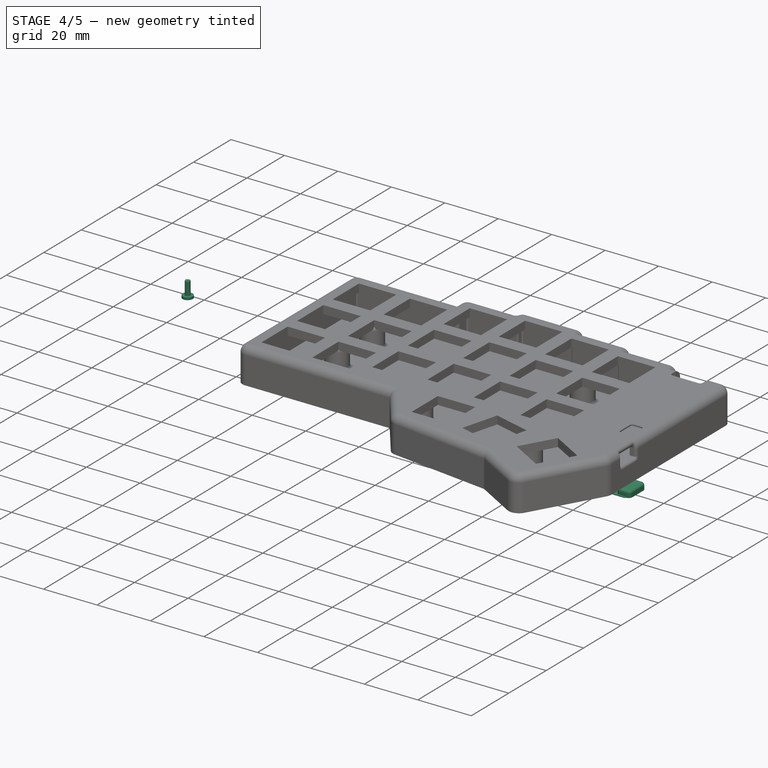
[diagram: stage 4 of 5 — iso view after this stage's code; geometry added in this stage tinted green]
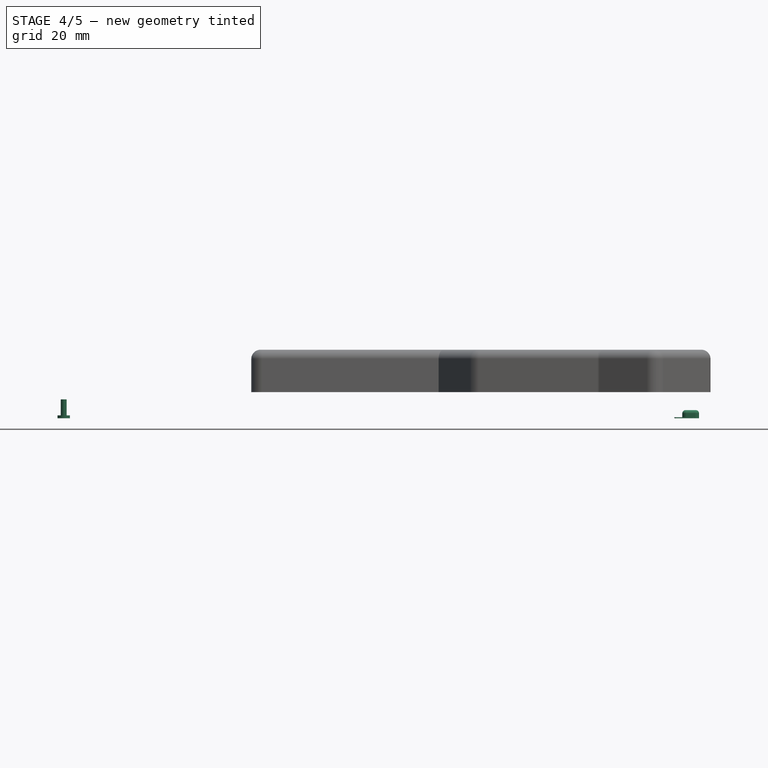
[diagram: stage 4 of 5 — front view after this stage's code; geometry added in this stage tinted green]
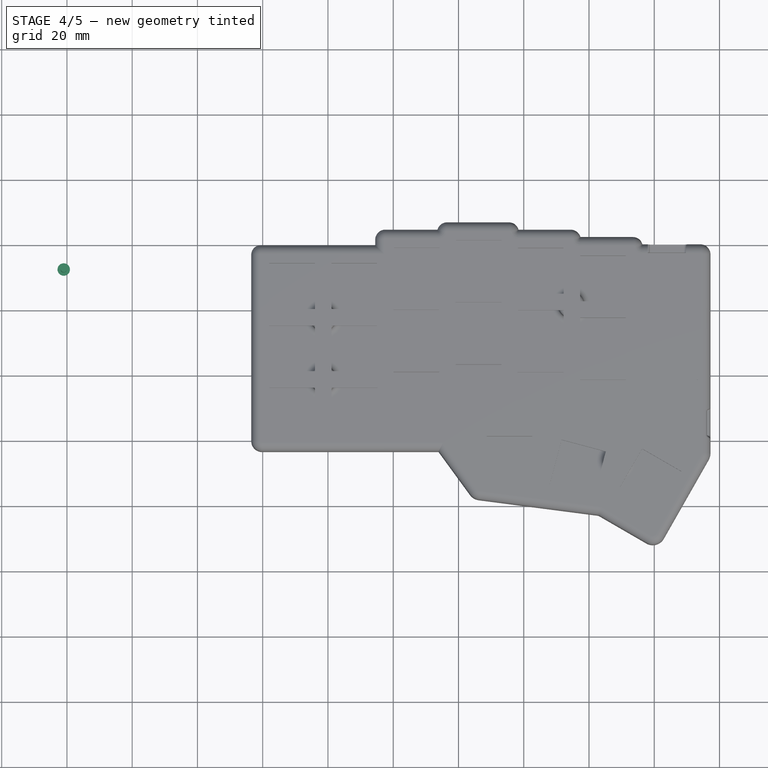
[diagram: stage 4 of 5 — top view after this stage's code; geometry added in this stage tinted green]
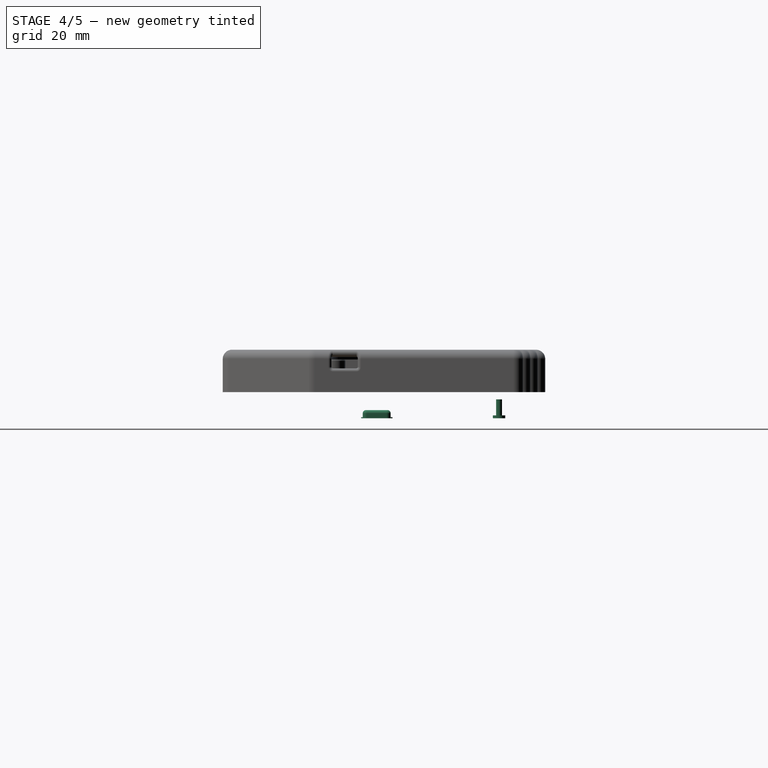
[diagram: stage 4 of 5 — right view after this stage's code; geometry added in this stage tinted green]
FEATURE [Sketcher::SketchObject] Sketch125
  ArcFitTolerance = 0
  AttachmentSupport = -> [Pocket029]
  FullyConstrained = false
  MakeInternals = false
  MapMode = 5
  Placement = pos=(0,0,8) rot=(1,0,0;3.14159rad)
  sketch-geometry (5):
    g0: Circle CenterX=5.4195 CenterY=-5.47064 CenterZ=0 NormalX=0 NormalY=0 NormalZ=1 AngleXU=0 Radius=5
    g1: Circle CenterX=5.4195 CenterY=-50.997 CenterZ=0 NormalX=0 NormalY=0 NormalZ=1 AngleXU=0 Radius=5
    g2: Circle CenterX=69.7206 CenterY=-25.9633 CenterZ=0 NormalX=0 NormalY=0 NormalZ=1 AngleXU=0 Radius=5
    g3: Circle CenterX=115.074 CenterY=17.0478 CenterZ=0 NormalX=0 NormalY=0 NormalZ=1 AngleXU=0 Radius=5
    g4: Circle CenterX=123.886 CenterY=-50.0179 CenterZ=0 NormalX=0 NormalY=0 NormalZ=1 AngleXU=0 Radius=5
  constraints (6):
    c: Radius(g0) = 5
    c: Vertical(g0,g1)
    c: Radius(g1) = 5
    c: Radius(g2) = 5
    c: Radius(g3) = 5
    c: Radius(g4) = 5
FEATURE [Sketcher::SketchObject] Sketch135
  ArcFitTolerance = 0
  AttachmentSupport = -> [XY_Plane010]
  FullyConstrained = false
  MakeInternals = false
  MapMode = 5
  sketch-geometry (1):
    g0: Circle CenterX=-60.9814 CenterY=52.6072 CenterZ=0 NormalX=0 NormalY=0 NormalZ=1 AngleXU=0 Radius=1.9
  constraints (1):
    c: Radius(g0) = 1.9
FEATURE [PartDesign::Pad] Pad038
  Direction = (0,0,1)
  Length = 0.9
  Length2 = 10
  Profile = -> Sketch135
  ReferenceAxis = -> Sketch135 [N_Axis]
  Suppressed = false
  Type = 0
FEATURE [Sketcher::SketchObject] Sketch136
  ArcFitTolerance = 0
  AttachmentSupport = -> [Pad038]
  ExternalGeometry = -> [Pad038]
  FullyConstrained = true
  MakeInternals = false
  MapMode = 5
  Placement = pos=(0,0,0.9) rot=(0,0,1;0rad)
  sketch-geometry (1):
    g0: Circle CenterX=-60.9814 CenterY=52.6072 CenterZ=0 NormalX=0 NormalY=0 NormalZ=1 AngleXU=0 Radius=0.9
  constraints (2):
    c: Coincident(g0,g-3)
    c: Radius(g0) = 0.9
FEATURE [PartDesign::Pad] Pad039
  BaseFeature = -> Pad038
  Direction = (0,0,1)
  Length = 4.9
  Length2 = 10
  Profile = -> Sketch136
  ReferenceAxis = -> Sketch136 [N_Axis]
  Suppressed = false
  Type = 0
FEATURE [PartDesign::Body] Body010  label="Tornillo"
  AllowCompound = false
  Group = -> [Sketch135,Pad038,Sketch136,Pad039,Fillet011,Sketch137,Pocket034,Fillet012]
  Origin = -> Origin010
  Placement = pos=(79.6,-15.1,13.4) rot=(0,0,1;0rad)
  Tip = -> Fillet012
FEATURE [Sketcher::SketchObject] Sketch138
  ArcFitTolerance = 0
  AttachmentSupport = -> [XY_Plane011]
  FullyConstrained = false
  MakeInternals = false
  MapMode = 5
  sketch-geometry (10):
    g0: ArcOfCircle CenterX=129.871 CenterY=18.109 CenterZ=0 NormalX=0 NormalY=0 NormalZ=1 AngleXU=0 Radius=1.28321 StartAngle=1.5708 EndAngle=3.14159
    g1: LineSegment StartX=129.871 StartY=19.3922 StartZ=0 EndX=132.438 EndY=19.3922 EndZ=0
    g2: ArcOfCircle CenterX=132.438 CenterY=18.109 CenterZ=0 NormalX=0 NormalY=0 NormalZ=1 AngleXU=0 Radius=1.28321 StartAngle=1e-16 EndAngle=1.5708
    g3: LineSegment StartX=133.721 StartY=18.109 StartZ=0 EndX=133.721 EndY=12.1018 EndZ=0
    g4: ArcOfCircle CenterX=132.438 CenterY=12.1018 CenterZ=0 NormalX=0 NormalY=0 NormalZ=1 AngleXU=0 Radius=1.28321 StartAngle=4.71239 EndAngle=6.28319
    g5: LineSegment StartX=132.438 StartY=10.8186 StartZ=0 EndX=129.871 EndY=10.8186 EndZ=0
    g6: ArcOfCircle CenterX=129.871 CenterY=12.1018 CenterZ=0 NormalX=0 NormalY=0 NormalZ=1 AngleXU=0 Radius=1.28321 StartAngle=3.14159 EndAngle=4.71239
    g7: LineSegment StartX=128.588 StartY=12.1018 StartZ=0 EndX=128.588 EndY=18.109 EndZ=0
    g8: GeomPoint [constr] X=128.588 Y=19.3922 Z=0
    g9: GeomPoint [constr] X=133.721 Y=10.8186 Z=0
  constraints (19):
    c: Tangent(g0,g1) = 1.5708
    c: Tangent(g1,g2) = 1.5708
    c: Tangent(g2,g3) = 1.5708
    c: Tangent(g3,g4) = 1.5708
    c: Tangent(g4,g5) = 1.5708
    c: Tangent(g5,g6) = 1.5708
    c: Tangent(g6,g7) = 1.5708
    c: Tangent(g7,g0) = 1.5708
    c: Horizontal(g1)
    c: Horizontal(g5)
    c: Vertical(g3)
    c: Vertical(g7)
    c: Equal(g0,g2)
    c: Equal(g2,g4)
    c: Equal(g4,g6)
    c: PointOnObject(g8,g1)
    c: PointOnObject(g8,g7)
    c: PointOnObject(g9,g3)
    c: PointOnObject(g9,g5)
FEATURE [PartDesign::Pad] Pad040
  Direction = (0,0,1)
  Length = 2.5
  Length2 = 10
  Profile = -> Sketch138
  ReferenceAxis = -> Sketch138 [N_Axis]
  Suppressed = false
  Type = 0
FEATURE [Sketcher::SketchObject] Sketch139
  ArcFitTolerance = 0
  AttachmentSupport = -> [XY_Plane011]
  FullyConstrained = false
  MakeInternals = false
  MapMode = 5
  sketch-geometry (8):
    g0: LineSegment StartX=131.673 StartY=19.9314 StartZ=0 EndX=126.887 EndY=19.9314 EndZ=0
    g1: LineSegment StartX=126.173 StartY=19.2175 StartZ=0 EndX=126.173 EndY=10.9892 EndZ=0
    g2: LineSegment StartX=126.828 StartY=10.3345 StartZ=0 EndX=131.742 EndY=10.3345 EndZ=0
    g3: LineSegment StartX=132.346 StartY=10.939 StartZ=0 EndX=132.346 EndY=19.2579 EndZ=0
    g4: ArcOfCircle CenterX=126.887 CenterY=19.2175 CenterZ=0 NormalX=0 NormalY=0 NormalZ=1 AngleXU=0 Radius=0.713951 StartAngle=1.5708 EndAngle=3.14159
    g5: ArcOfCircle CenterX=126.828 CenterY=10.9892 CenterZ=0 NormalX=0 NormalY=0 NormalZ=1 AngleXU=0 Radius=0.654684 StartAngle=3.14159 EndAngle=4.71239
    g6: ArcOfCircle CenterX=131.742 CenterY=10.939 CenterZ=0 NormalX=0 NormalY=0 NormalZ=1 AngleXU=0 Radius=0.60449 StartAngle=4.71239 EndAngle=6.28319
    g7: ArcOfCircle CenterX=131.673 CenterY=19.2579 CenterZ=0 NormalX=0 NormalY=0 NormalZ=1 AngleXU=0 Radius=0.673523 StartAngle=0 EndAngle=1.5708
  constraints (12):
    c: Horizontal(g0)
    c: Horizontal(g2)
    c: Vertical(g1)
    c: Vertical(g3)
    c: Tangent(g0,g4) = -1.5708
    c: Tangent(g1,g4) = -1.5708
    c: Tangent(g1,g5) = -1.5708
    c: Tangent(g2,g5) = -1.5708
    c: Tangent(g3,g6) = -1.5708
    c: Tangent(g2,g6) = -1.5708
    c: Tangent(g0,g7) = -1.5708
    c: Tangent(g3,g7) = -1.5708
FEATURE [PartDesign::Pad] Pad041
  BaseFeature = -> Pad040
  Direction = (0,0,1)
  Length = 0.3
  Length2 = 10
  Profile = -> Sketch139
  ReferenceAxis = -> Sketch139 [N_Axis]
  Suppressed = false
  Type = 0
FEATURE [PartDesign::Fillet] Fillet014
  Base = -> Pad041 [Edge53]
  BaseFeature = -> Pad041
  Radius = 1
  SupportTransform = false
  Suppressed = false
  UseAllEdges = false
FEATURE [PartDesign::Fillet] Fillet013
  Base = -> Pocket030 [Edge125,Edge155,Edge159,Edge157,Edge153]
  BaseFeature = -> Pocket030
  Placement = pos=(0,0,8) rot=(0,0,1;0rad)
  Radius = 1.5
  SupportTransform = false
  Suppressed = false
  UseAllEdges = false
FEATURE [PartDesign::Fillet] Fillet015
  Base = -> Fillet013 [Edge237,Edge234,Edge233,Edge230,Edge232]
  BaseFeature = -> Fillet013
  Placement = pos=(0,0,8) rot=(0,0,1;0rad)
  Radius = 1.2
  SupportTransform = false
  Suppressed = false
  UseAllEdges = false
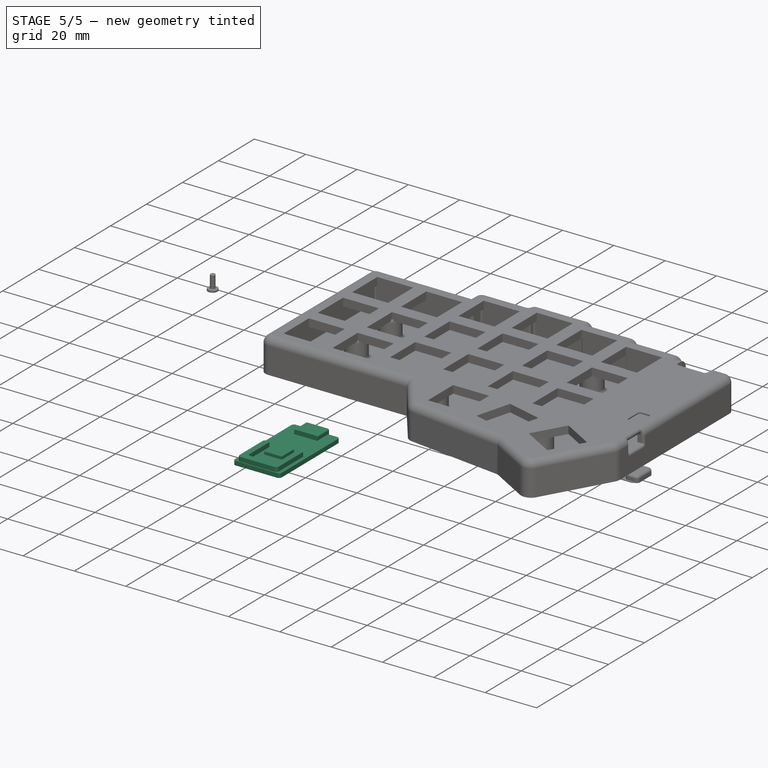
[diagram: stage 5 of 5 — iso view after this stage's code; geometry added in this stage tinted green]
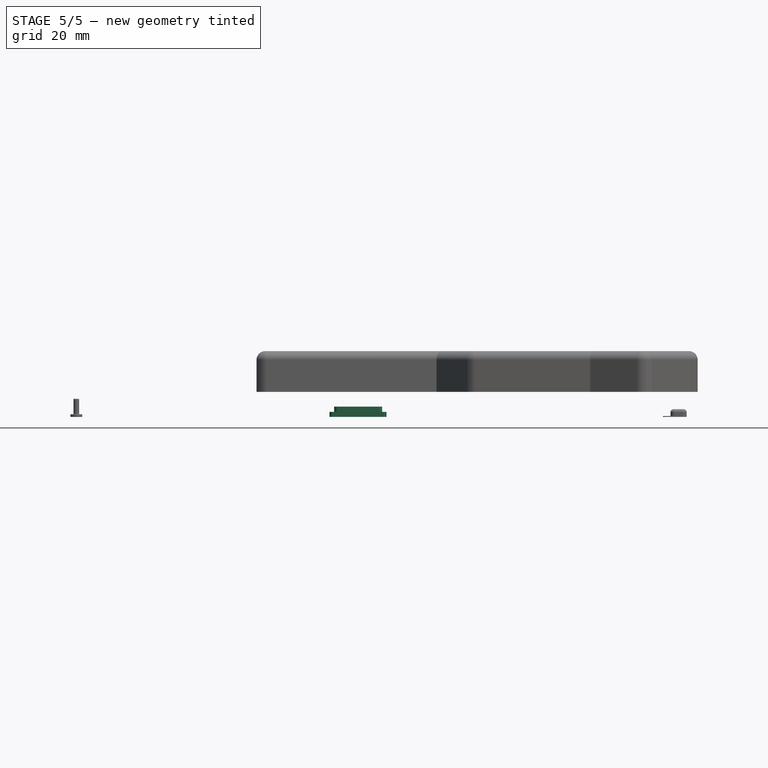
[diagram: stage 5 of 5 — front view after this stage's code; geometry added in this stage tinted green]
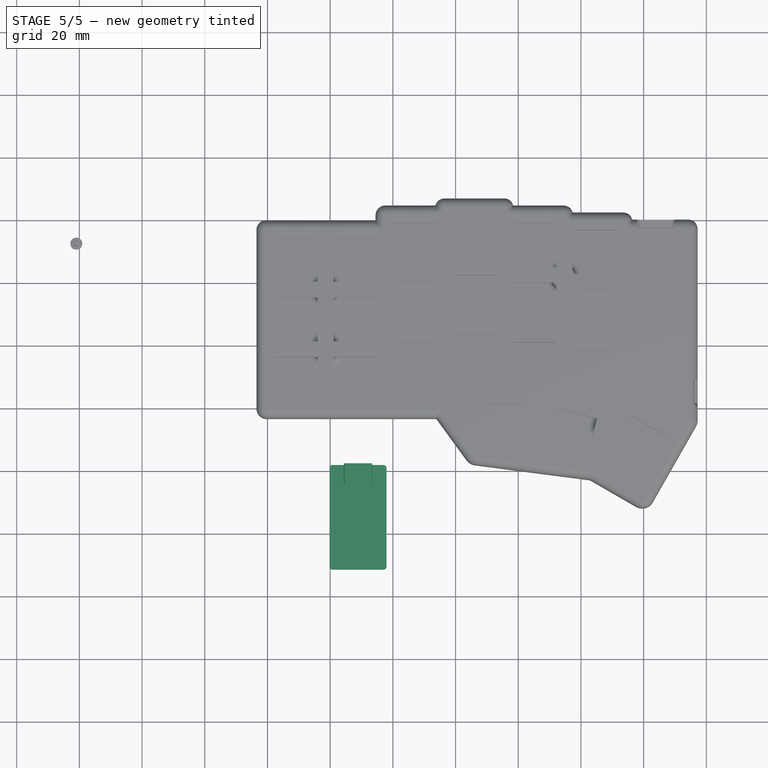
[diagram: stage 5 of 5 — top view after this stage's code; geometry added in this stage tinted green]
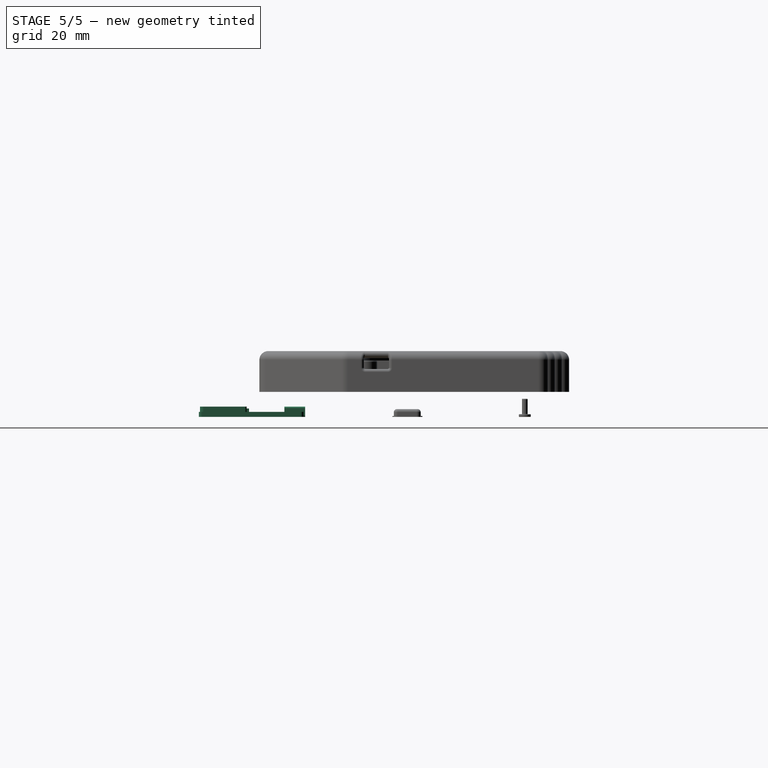
[diagram: stage 5 of 5 — right view after this stage's code; geometry added in this stage tinted green]
FEATURE [Sketcher::SketchObject] Sketch128
  ArcFitTolerance = 0
  AttachmentSupport = -> [XY_Plane]
  FullyConstrained = false
  MakeInternals = false
  MapMode = 5
  sketch-geometry (10):
    g0: LineSegment StartX=20.7746 StartY=-17.9889 StartZ=0 EndX=36.9746 EndY=-17.9889 EndZ=0
    g1: LineSegment StartX=37.9746 StartY=-18.9889 StartZ=0 EndX=37.9746 EndY=-50.3889 EndZ=0
    g2: LineSegment StartX=36.9746 StartY=-51.3889 StartZ=0 EndX=20.7746 EndY=-51.3889 EndZ=0
    g3: LineSegment StartX=19.7746 StartY=-50.3889 StartZ=0 EndX=19.7746 EndY=-18.9889 EndZ=0
    g4: ArcOfCircle CenterX=36.9746 CenterY=-50.3889 CenterZ=0 NormalX=0 NormalY=0 NormalZ=1 AngleXU=0 Radius=1 StartAngle=4.71239 EndAngle=6.28319
    g5: ArcOfCircle CenterX=20.7746 CenterY=-50.3889 CenterZ=0 NormalX=0 NormalY=0 NormalZ=1 AngleXU=0 Radius=1 StartAngle=3.14159 EndAngle=4.71239
    g6: ArcOfCircle CenterX=20.7746 CenterY=-18.9889 CenterZ=0 NormalX=0 NormalY=0 NormalZ=1 AngleXU=0 Radius=1 StartAngle=1.5708 EndAngle=3.14159
    g7: ArcOfCircle CenterX=36.9746 CenterY=-18.9889 CenterZ=0 NormalX=0 NormalY=0 NormalZ=1 AngleXU=0 Radius=1 StartAngle=0 EndAngle=1.5708
    g8: LineSegment [constr] StartX=28.6455 StartY=-51.3889 StartZ=0 EndX=28.6455 EndY=-17.9889 EndZ=0
    g9: LineSegment [constr] StartX=19.7746 StartY=-47.1868 StartZ=0 EndX=37.9746 EndY=-47.1868 EndZ=0
  constraints (24):
    c: Horizontal(g0)
    c: Horizontal(g2)
    c: Vertical(g1)
    c: Vertical(g3)
    c: Tangent(g1,g4) = 1.5708
    c: Tangent(g2,g4) = 1.5708
    c: Tangent(g3,g5) = 1.5708
    c: Tangent(g2,g5) = 1.5708
    c: Tangent(g0,g6) = 1.5708
    c: Tangent(g3,g6) = 1.5708
    c: Tangent(g0,g7) = 1.5708
    c: Tangent(g1,g7) = 1.5708
    c: Radius(g7) = 1
    c: Radius(g6) = 1
    c: Radius(g5) = 1
    c: Radius(g4) = 1
    c: PointOnObject(g8,g2)
    c: PointOnObject(g8,g0)
    c: Vertical(g8)
    c: PointOnObject(g9,g3)
    c: PointOnObject(g9,g1)
    c: Horizontal(g9)
    c: Distance(g8) = 33.4
    c: Distance(g9) = 18.2
FEATURE [PartDesign::Pad] Pad034
  Direction = (0,0,1)
  Length = 1.6
  Length2 = 10
  Profile = -> Sketch128
  ReferenceAxis = -> Sketch128 [N_Axis]
  Suppressed = false
  Type = 0
FEATURE [Sketcher::SketchObject] Sketch130
  ArcFitTolerance = 0
  AttachmentSupport = -> [Pad034]
  ExternalGeometry = -> [Pad034]
  FullyConstrained = true
  MakeInternals = false
  MapMode = 5
  Placement = pos=(0,0,0) rot=(1,0,0;3.14159rad)
  sketch-geometry (6):
    g0: LineSegment StartX=33.3746 StartY=24.0889 StartZ=0 EndX=24.3746 EndY=24.0889 EndZ=0
    g1: LineSegment [constr] StartX=24.3746 StartY=24.0889 StartZ=0 EndX=19.7746 EndY=24.0889 EndZ=0
    g2: LineSegment StartX=24.3746 StartY=24.0889 StartZ=0 EndX=24.3746 EndY=17.9889 EndZ=0
    g3: LineSegment StartX=33.3746 StartY=24.0889 StartZ=0 EndX=33.3746 EndY=17.9889 EndZ=0
    g4: LineSegment StartX=24.3746 StartY=17.9889 StartZ=0 EndX=33.3746 EndY=17.9889 EndZ=0
    g5: LineSegment [constr] StartX=33.3746 StartY=24.0889 StartZ=0 EndX=37.9746 EndY=24.0889 EndZ=0
  constraints (18):
    c: Horizontal(g0)
    c: Coincident(g1,g0)
    c: PointOnObject(g1,g-5)
    c: Horizontal(g1)
    c: Distance(g0) = 9
    c: Coincident(g2,g0)
    c: PointOnObject(g2,g-6)
    c: Vertical(g2)
    c: Coincident(g3,g0)
    c: PointOnObject(g3,g-6)
    c: Vertical(g3)
    c: Distance(g3) = 6.1
    c: Coincident(g4,g2)
    c: Coincident(g4,g3)
    c: Coincident(g5,g0)
    c: PointOnObject(g5,g-4)
    c: Horizontal(g5)
    c: Equal(g5,g1)
FEATURE [PartDesign::Pocket] Pocket032
  BaseFeature = -> Pad034
  Direction = (0,0,1)
  Length = 5
  Length2 = 5
  Profile = -> Sketch130
  ReferenceAxis = -> Sketch130 [N_Axis]
  Suppressed = false
  Type = 1
FEATURE [Sketcher::SketchObject] Sketch131
  ArcFitTolerance = 0
  AttachmentSupport = -> [Pocket032]
  ExternalGeometry = -> [Pocket032]
  FullyConstrained = false
  MakeInternals = false
  MapMode = 5
  Placement = pos=(0,-24.0889,0) rot=(0,0.707107,0.707107;3.14159rad)
  sketch-geometry (11):
    g0: ArcOfCircle CenterX=-32.8504 CenterY=0.524237 CenterZ=0 NormalX=0 NormalY=0 NormalZ=1 AngleXU=0 Radius=0.524237 StartAngle=3.14159 EndAngle=4.71239
    g1: LineSegment StartX=-33.3746 StartY=0.524237 StartZ=0 EndX=-33.3746 EndY=2.77576 EndZ=0
    g2: ArcOfCircle CenterX=-32.8504 CenterY=2.77576 CenterZ=0 NormalX=0 NormalY=0 NormalZ=1 AngleXU=0 Radius=0.524237 StartAngle=1.5708 EndAngle=3.14159
    g3: LineSegment StartX=-32.8504 StartY=3.3 StartZ=0 EndX=-24.8989 EndY=3.3 EndZ=0
    g4: ArcOfCircle CenterX=-24.8989 CenterY=2.77576 CenterZ=0 NormalX=0 NormalY=0 NormalZ=1 AngleXU=0 Radius=0.524237 StartAngle=0 EndAngle=1.5708
    g5: LineSegment StartX=-24.3746 StartY=2.77576 StartZ=0 EndX=-24.3746 EndY=0.524237 EndZ=0
    g6: ArcOfCircle CenterX=-24.8989 CenterY=0.524237 CenterZ=0 NormalX=0 NormalY=0 NormalZ=1 AngleXU=0 Radius=0.524237 StartAngle=4.71239 EndAngle=6.28319
    g7: LineSegment StartX=-24.8989 StartY=0 StartZ=0 EndX=-32.8504 EndY=0 EndZ=0
    g8: GeomPoint [constr] X=-33.3746 Y=0 Z=0
    g9: GeomPoint [constr] X=-24.3746 Y=3.3 Z=0
    g10: LineSegment [constr] StartX=-28.8746 StartY=0 StartZ=0 EndX=-28.8746 EndY=3.3 EndZ=0
  constraints (24):
    c: Tangent(g0,g1) = 1.5708
    c: Tangent(g1,g2) = 1.5708
    c: Tangent(g2,g3) = 1.5708
    c: Tangent(g3,g4) = 1.5708
    c: Tangent(g4,g5) = 1.5708
    c: Tangent(g5,g6) = 1.5708
    c: Tangent(g6,g7) = 1.5708
    c: Tangent(g7,g0) = 1.5708
    c: Horizontal(g3)
    c: Horizontal(g7)
    c: Vertical(g1)
    c: Vertical(g5)
    c: Equal(g0,g2)
    c: Equal(g2,g4)
    c: Equal(g4,g6)
    c: PointOnObject(g8,g1)
    c: PointOnObject(g8,g7)
    c: PointOnObject(g9,g3)
    c: PointOnObject(g9,g5)
    c: Coincident(g8,g-3)
    c: PointOnObject(g10,g7)
    c: PointOnObject(g10,g3)
    c: Vertical(g10)
    c: Distance(g10) = 3.3
FEATURE [PartDesign::Pad] Pad035
  BaseFeature = -> Pocket032
  Direction = (0,1,-2e-16)
  Length = 6.6
  Length2 = 10
  Profile = -> Sketch131
  ReferenceAxis = -> Sketch131 [N_Axis]
  Suppressed = false
  Type = 0
FEATURE [Sketcher::SketchObject] Sketch132
  ArcFitTolerance = 0
  AttachmentSupport = -> [Pad035]
  ExternalGeometry = -> [Pad035]
  FullyConstrained = false
  MakeInternals = false
  MapMode = 5
  Placement = pos=(0,0,1.6) rot=(0,0,1;0rad)
  sketch-geometry (7):
    g0: LineSegment [constr] StartX=28.8746 StartY=-51.3889 StartZ=0 EndX=28.8746 EndY=-42.1889 EndZ=0
    g1: LineSegment StartX=25.4746 StartY=-42.1889 StartZ=0 EndX=32.2746 EndY=-42.1889 EndZ=0
    g2: LineSegment StartX=32.2746 StartY=-42.1889 StartZ=0 EndX=32.2746 EndY=-35.3889 EndZ=0
    g3: LineSegment StartX=32.2746 StartY=-35.3889 StartZ=0 EndX=25.4746 EndY=-35.3889 EndZ=0
    g4: LineSegment StartX=25.4746 StartY=-35.3889 StartZ=0 EndX=25.4746 EndY=-42.1889 EndZ=0
    g5: LineSegment [constr] StartX=25.4746 StartY=-42.1889 StartZ=0 EndX=19.7746 EndY=-42.1889 EndZ=0
    g6: LineSegment [constr] StartX=32.2746 StartY=-42.1889 StartZ=0 EndX=37.9746 EndY=-42.1889 EndZ=0
  constraints (21):
    c: PointOnObject(g0,g-3)
    c: Vertical(g0)
    c: Coincident(g1,g2)
    c: Coincident(g2,g3)
    c: Coincident(g3,g4)
    c: Coincident(g4,g1)
    c: Horizontal(g1)
    c: Horizontal(g3)
    c: Vertical(g2)
    c: Vertical(g4)
    c: Distance(g4) = 6.8
    c: Distance(g1) = 6.8
    c: PointOnObject(g0,g1)
    c: Coincident(g5,g1)
    c: PointOnObject(g5,g-4)
    c: Horizontal(g5)
    c: Coincident(g6,g1)
    c: PointOnObject(g6,g-5)
    c: Horizontal(g6)
    c: Equal(g5,g6)
    c: Distance(g0) = 9.2
FEATURE [PartDesign::Pad] Pad036
  BaseFeature = -> Pad035
  Direction = (0,0,1)
  Length = 1.1
  Length2 = 10
  Profile = -> Sketch132
  ReferenceAxis = -> Sketch132 [N_Axis]
  Suppressed = false
  Type = 0
FEATURE [Sketcher::SketchObject] Sketch133
  ArcFitTolerance = 0
  AttachmentSupport = -> [Pad036]
  FullyConstrained = false
  MakeInternals = false
  MapMode = 5
  Placement = pos=(0,7e-16,3.3) rot=(0,0,1;0rad)
  sketch-geometry (16):
    g0: LineSegment StartX=21.2562 StartY=-49.8327 StartZ=0 EndX=21.2562 EndY=-36.9147 EndZ=0
    g1: ArcOfCircle CenterX=24.66 CenterY=-47.5055 CenterZ=0 NormalX=0 NormalY=0 NormalZ=1 AngleXU=0 Radius=1.12391 StartAngle=3.14159 EndAngle=4.71239
    g2: ArcOfCircle CenterX=33.4356 CenterY=-47.703 CenterZ=0 NormalX=0 NormalY=0 NormalZ=1 AngleXU=0 Radius=0.92638 StartAngle=4.71239 EndAngle=6.28319
    g3: ArcOfCircle CenterX=22.4318 CenterY=-49.8327 CenterZ=0 NormalX=0 NormalY=0 NormalZ=1 AngleXU=0 Radius=1.17565 StartAngle=3.14159 EndAngle=4.71239
    g4: ArcOfCircle CenterX=35.3926 CenterY=-49.8189 CenterZ=0 NormalX=0 NormalY=0 NormalZ=1 AngleXU=0 Radius=1.18945 StartAngle=4.71239 EndAngle=6.28319
    g5: LineSegment StartX=36.582 StartY=-36.7335 StartZ=0 EndX=36.582 EndY=-49.8189 EndZ=0
    g6: ArcOfCircle CenterX=22.0316 CenterY=-36.9147 CenterZ=0 NormalX=0 NormalY=0 NormalZ=1 AngleXU=0 Radius=0.775438 StartAngle=1.5708 EndAngle=3.14159
    g7: ArcOfCircle CenterX=22.8657 CenterY=-36.8097 CenterZ=0 NormalX=0 NormalY=0 NormalZ=1 AngleXU=0 Radius=0.670451 StartAngle=0 EndAngle=1.5708
    g8: ArcOfCircle CenterX=34.9928 CenterY=-36.7701 CenterZ=0 NormalX=0 NormalY=0 NormalZ=1 AngleXU=0 Radius=0.630815 StartAngle=1.5708 EndAngle=3.14159
    g9: ArcOfCircle CenterX=35.9878 CenterY=-36.7335 CenterZ=0 NormalX=0 NormalY=0 NormalZ=1 AngleXU=0 Radius=0.594269 StartAngle=0 EndAngle=1.5708
    g10: LineSegment StartX=22.4318 StartY=-51.0083 StartZ=0 EndX=35.3926 EndY=-51.0083 EndZ=0
    g11: LineSegment StartX=24.66 StartY=-48.6294 StartZ=0 EndX=33.4356 EndY=-48.6294 EndZ=0
    g12: LineSegment StartX=22.0316 StartY=-36.1393 StartZ=0 EndX=22.8657 EndY=-36.1393 EndZ=0
    g13: LineSegment StartX=34.9928 StartY=-36.1393 StartZ=0 EndX=35.9878 EndY=-36.1393 EndZ=0
    g14: LineSegment StartX=34.362 StartY=-36.7701 StartZ=0 EndX=34.362 EndY=-47.703 EndZ=0
    g15: LineSegment StartX=23.5361 StartY=-47.5055 StartZ=0 EndX=23.5361 EndY=-36.8097 EndZ=0
  constraints (24):
    c: Vertical(g0)
    c: Tangent(g0,g3) = 1.5708
    c: Coincident(g5,g4)
    c: Vertical(g5)
    c: Tangent(g0,g6) = 1.5708
    c: Tangent(g5,g9) = 1.5708
    c: Coincident(g10,g3)
    c: Coincident(g10,g4)
    c: Horizontal(g10)
    c: Coincident(g11,g1)
    c: Coincident(g11,g2)
    c: Horizontal(g11)
    c: Coincident(g12,g6)
    c: Coincident(g12,g7)
    c: Horizontal(g12)
    c: Coincident(g13,g8)
    c: Coincident(g13,g9)
    c: Horizontal(g13)
    c: Coincident(g14,g8)
    c: Coincident(g14,g2)
    c: Vertical(g14)
    c: Coincident(g15,g1)
    c: Coincident(g15,g7)
    c: Vertical(g15)
FEATURE [PartDesign::Pad] Pad037
  BaseFeature = -> Pad036
  Direction = (0,0,1)
  Length = 3
  Length2 = 10
  Profile = -> Sketch133
  ReferenceAxis = -> Sketch133 [N_Axis]
  Reversed = true
  Suppressed = false
  Type = 0
FEATURE [PartDesign::Fillet] Fillet011
  Base = -> Pad039 [Edge3,Edge2]
  BaseFeature = -> Pad039
  Radius = 0.2
  SupportTransform = false
  Suppressed = false
  UseAllEdges = false
FEATURE [Sketcher::SketchObject] Sketch137
  ArcFitTolerance = 0
  AttachmentSupport = -> [Fillet011]
  ExternalGeometry = -> [Fillet011]
  FullyConstrained = false
  MakeInternals = false
  MapMode = 5
  Placement = pos=(0,0,0) rot=(1,0,0;3.14159rad)
  sketch-geometry (7):
    g0: LineSegment StartX=-60.2558 StartY=-53.1161 StartZ=0 EndX=-60.1779 EndY=-52.2332 EndZ=0
    g1: LineSegment StartX=-60.1779 StartY=-52.2332 StartZ=0 EndX=-60.9035 EndY=-51.7243 EndZ=0
    g2: LineSegment StartX=-60.9035 StartY=-51.7243 StartZ=0 EndX=-61.7071 EndY=-52.0982 EndZ=0
    g3: LineSegment StartX=-61.7071 StartY=-52.0982 StartZ=0 EndX=-61.785 EndY=-52.9811 EndZ=0
    g4: LineSegment StartX=-61.785 StartY=-52.9811 StartZ=0 EndX=-61.0594 EndY=-53.49 EndZ=0
    g5: LineSegment StartX=-61.0594 StartY=-53.49 StartZ=0 EndX=-60.2558 EndY=-53.1161 EndZ=0
    g6: Circle [constr] CenterX=-60.9814 CenterY=-52.6072 CenterZ=0 NormalX=0 NormalY=0 NormalZ=1 AngleXU=0 Radius=0.886307
  constraints (14):
    c: Coincident(g0,g1)
    c: Coincident(g1,g2)
    c: Coincident(g2,g3)
    c: Coincident(g3,g4)
    c: Coincident(g4,g5)
    c: Coincident(g5,g0)
    c: Equal(g0, g1-g5) x5
    c: PointOnObject(g0,g6)
    c: PointOnObject(g1,g6)
    c: PointOnObject(g2,g6)
    c: PointOnObject(g3,g6)
    c: PointOnObject(g4,g6)
    c: PointOnObject(g5,g6)
    c: Coincident(g6,g-3)
FEATURE [PartDesign::Pocket] Pocket034
  BaseFeature = -> Fillet011
  Direction = (0,0,1)
  Length = 0.6
  Length2 = 5
  Profile = -> Sketch137
  ReferenceAxis = -> Sketch137 [N_Axis]
  Suppressed = false
  Type = 0
FEATURE [PartDesign::Fillet] Fillet012
  Base = -> Pocket034 [Edge28]
  BaseFeature = -> Pocket034
  Radius = 0.2
  SupportTransform = false
  Suppressed = false
  UseAllEdges = false
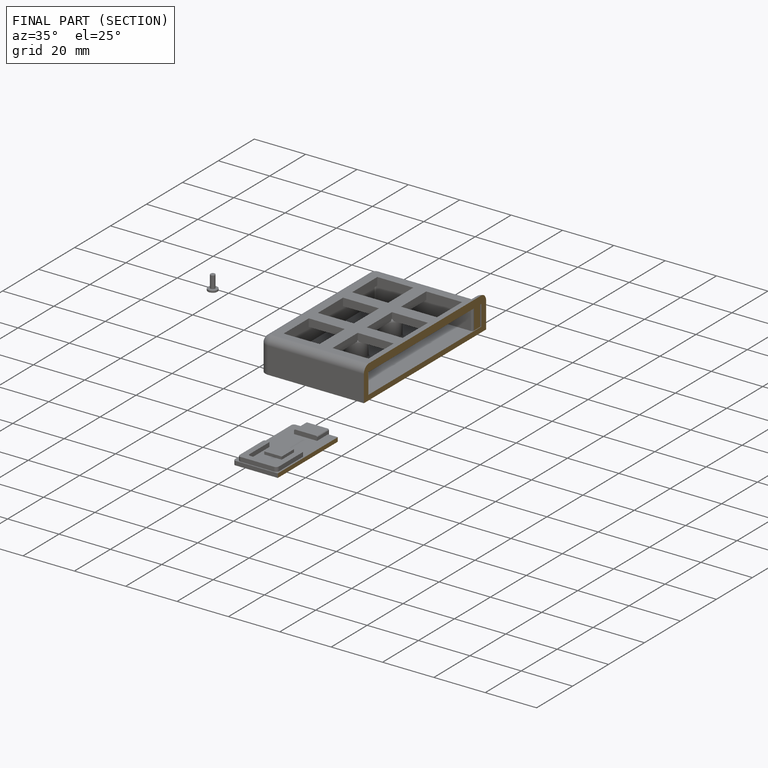
[diagram: finished part — half-section view (interior)]
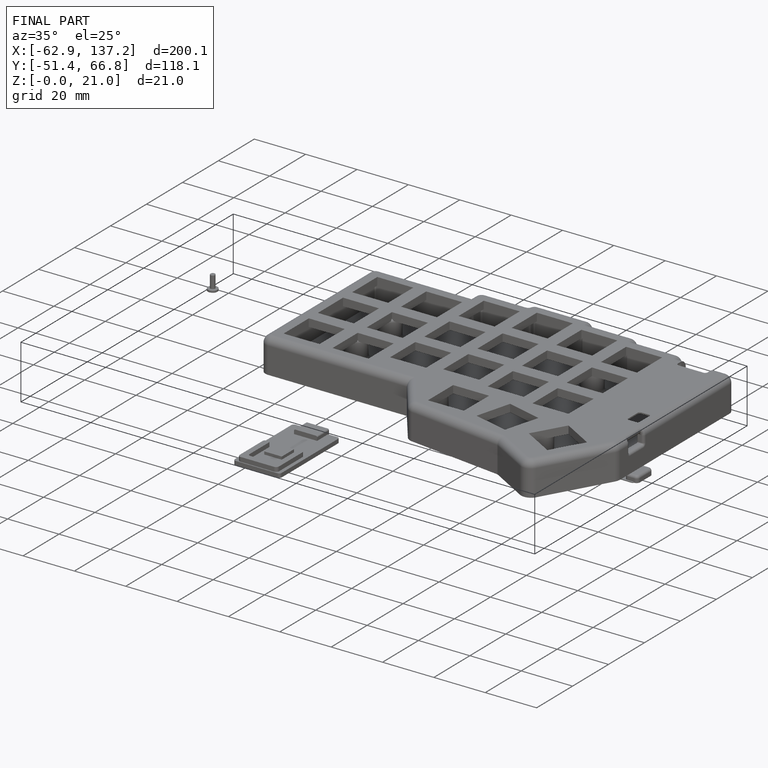
[diagram: finished part — iso view with bounding-box wireframe]
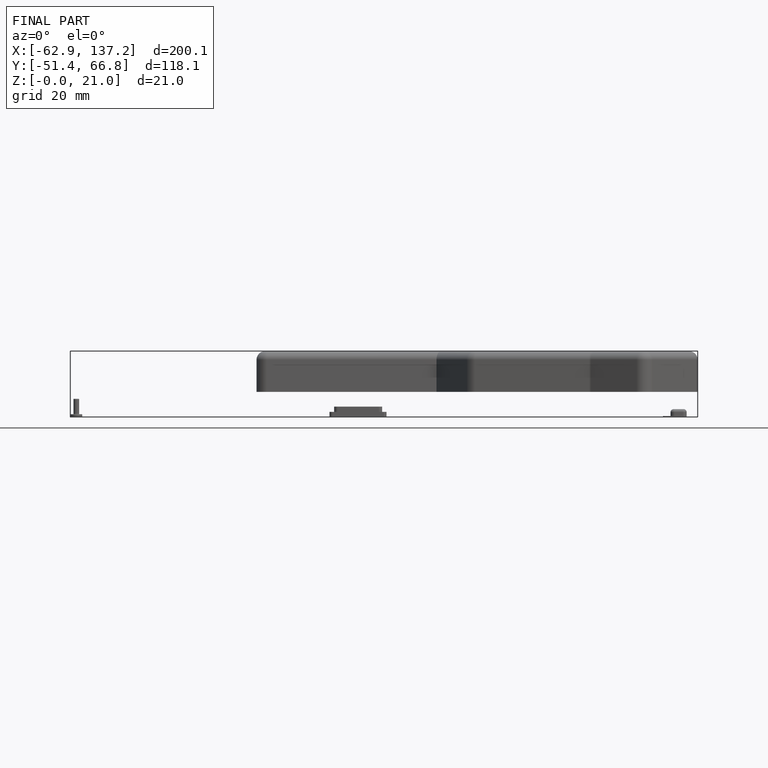
[diagram: finished part — front view with bounding-box wireframe]
